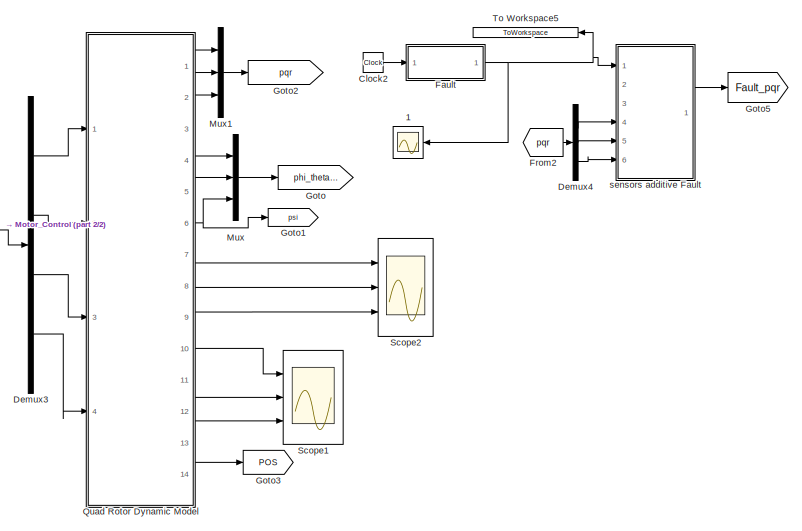
[diagram: root canvas - part 1/2, top right region]
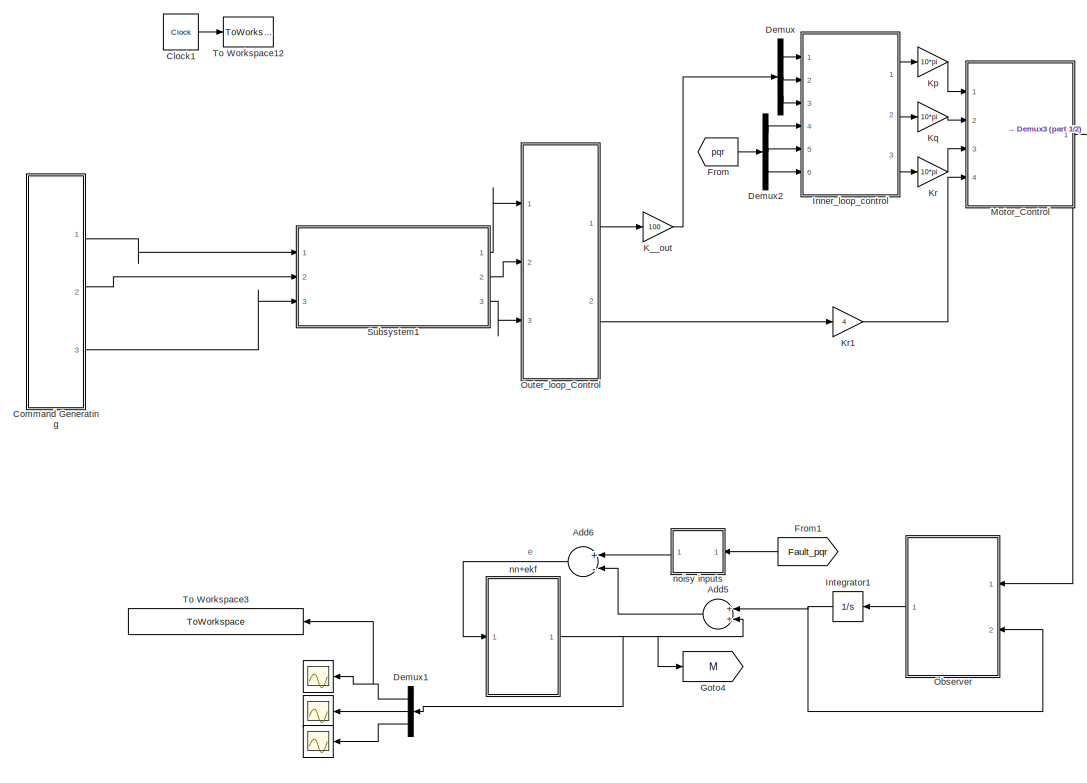
[diagram: root canvas - part 2/2, left side, full height]
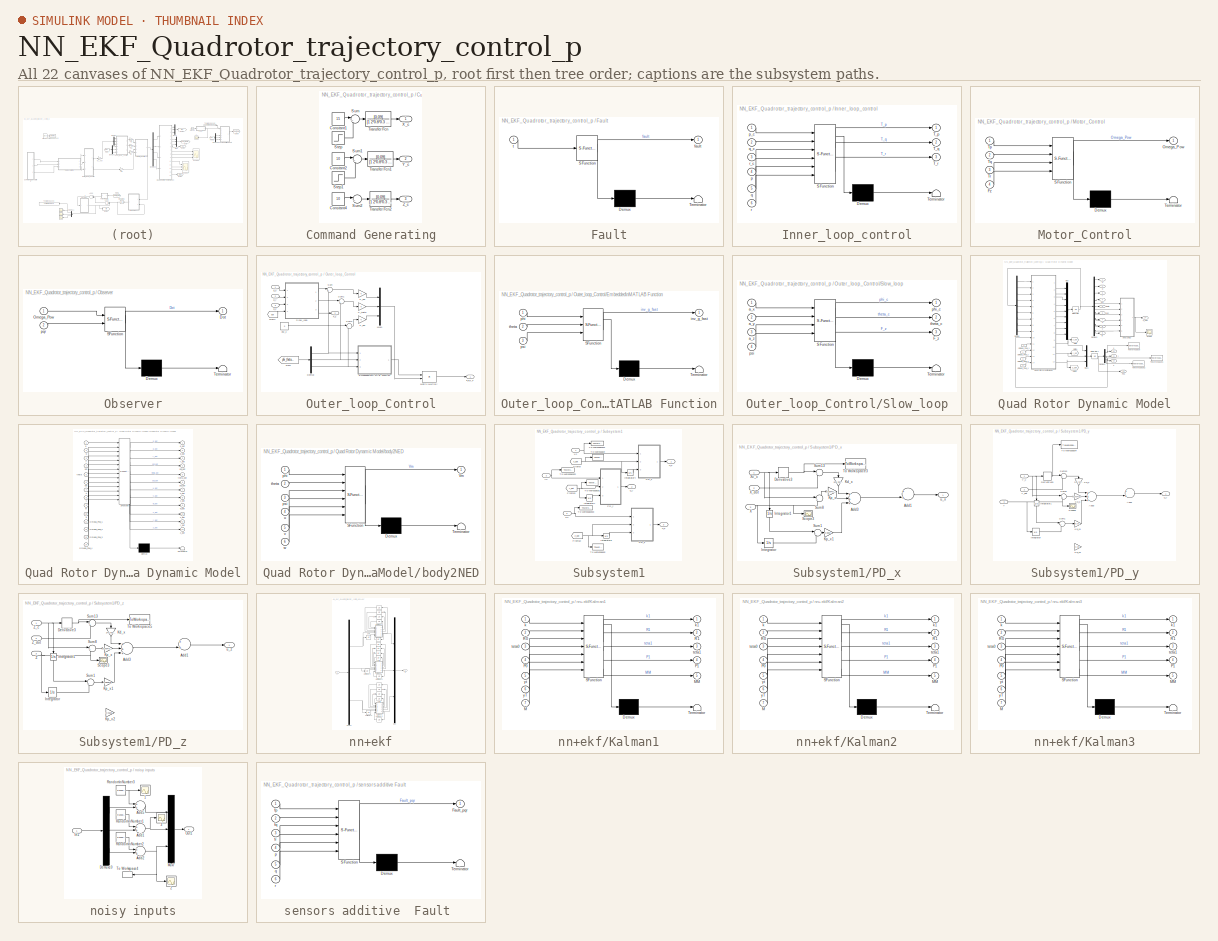
[diagram: thumbnail index - all 22 canvases of the model, root first then tree order]
MODEL NN_EKF_Quadrotor_trajectory_control_p
KIND model
BLOCK [Scope]      
  Ports = [1]
  SID = 1
  ScopeSpecificationString = C++SS(StrPVP('Location','[6, 49, 1282, 759]'),StrPVP('Open','off'),MxPVP('AxesTitles',24,'struct(''axes1'',''%<SignalLabel>'')'),StrPVP('TimeRange','20'),StrPVP('YMin','0.005'),StrPVP('YMax','0.11'),StrPVP('SaveName','ScopeData6'),StrPVP('DataFormat','StructureWithTime'),StrPVP('LimitDataPoints','off'),StrPVP('BlockParamSampleTime','0'),StrPVP('Decimation','1'),StrPVP('BlockParamSampleInput','off'...<+2ch>
BLOCK [Scope]       
  Ports = [1]
  SID = 2
  ScopeSpecificationString = C++SS(StrPVP('Location','[6, 49, 1282, 759]'),StrPVP('Open','off'),MxPVP('AxesTitles',24,'struct(''axes1'',''%<SignalLabel>'')'),StrPVP('YMin','-1.2'),StrPVP('YMax','-0.725'),StrPVP('SaveName','ScopeData7'),StrPVP('DataFormat','StructureWithTime'),StrPVP('LimitDataPoints','off'),StrPVP('BlockParamSampleTime','0'),StrPVP('Decimation','1'),StrPVP('BlockParamSampleInput','off'))
BLOCK [Scope]           
  Ports = [1]
  SID = 3
  ScopeSpecificationString = C++SS(StrPVP('Location','[5, 48, 1285, 759]'),StrPVP('Open','off'),MxPVP('AxesTitles',24,'struct(''axes1'',''%<SignalLabel>'')'),StrPVP('YMin','2.77556e-017'),StrPVP('YMax','1'),StrPVP('SaveName','ScopeData8'),StrPVP('DataFormat','StructureWithTime'),StrPVP('BlockParamSampleTime','0'),StrPVP('LimitDataPoints','on'),StrPVP('Decimation','1'),StrPVP('BlockParamSampleInput','off'))
BLOCK [Scope]      1
  Ports = [1]
  SID = 4
  ScopeSpecificationString = C++SS(StrPVP('Location','[6, 49, 1282, 759]'),StrPVP('Open','off'),MxPVP('AxesTitles',24,'struct(''axes1'',''%<SignalLabel>'')'),StrPVP('TimeRange','20'),StrPVP('YMin','0.0015'),StrPVP('YMax','0.011'),StrPVP('SaveName','ScopeData9'),StrPVP('DataFormat','StructureWithTime'),StrPVP('LimitDataPoints','off'),StrPVP('BlockParamSampleTime','0'),StrPVP('Decimation','1'),StrPVP('BlockParamSampleInput','of...<+4ch>
BLOCK [Sum] Add5
  InputSameDT = off
  OutDataTypeStr = Inherit: Inherit via internal rule
  Ports = [2, 1]
  SID = 5
  SaturateOnIntegerOverflow = off
BLOCK [Sum] Add6
  InputSameDT = off
  Inputs = +-
  OutDataTypeStr = Inherit: Same as accumulator
  Ports = [2, 1]
  SID = 6
  SaturateOnIntegerOverflow = off
BLOCK [Clock] Clock1
  SID = 7
BLOCK [Clock] Clock2
  SID = 231
BLOCK [SubSystem] Command Generating
  Ports = [0, 3]
  RequestExecContextInheritance = off
  SID = 8
  Variant = off
BLOCK [Constant] Command Generating/Constant1
  SID = 9
  Value = 15
BLOCK [Constant] Command Generating/Constant2
  SID = 10
  Value = 10
BLOCK [Constant] Command Generating/Constant4
  SID = 11
  Value = 10
BLOCK [Step] Command Generating/Step
  After = 15
  SID = 12
  SampleTime = 0
  Time = 30
BLOCK [Step] Command Generating/Step1
  After = 10
  SID = 13
  SampleTime = 0
  Time = 15
BLOCK [Sum] Command Generating/Sum
  IconShape = round
  InputSameDT = off
  Inputs = |+-
  OutDataTypeStr = Inherit: Inherit via internal rule
  Ports = [2, 1]
  SID = 14
  SaturateOnIntegerOverflow = off
BLOCK [Sum] Command Generating/Sum1
  IconShape = round
  InputSameDT = off
  Inputs = |+-
  OutDataTypeStr = Inherit: Inherit via internal rule
  Ports = [2, 1]
  SID = 15
  SaturateOnIntegerOverflow = off
BLOCK [Sum] Command Generating/Sum2
  IconShape = round
  InputSameDT = off
  Inputs = |+-
  OutDataTypeStr = Inherit: Inherit via internal rule
  Ports = [2, 1]
  SID = 16
  SaturateOnIntegerOverflow = off
BLOCK [TransferFcn] Command Generating/Transfer Fcn
  Denominator = [1 2*0.8*0.3 0.09]
  Numerator = [0.09]
  SID = 17
BLOCK [TransferFcn] Command Generating/Transfer Fcn1
  Denominator = [1 2*0.8*0.3 0.09]
  Numerator = [0.09]
  SID = 18
BLOCK [TransferFcn] Command Generating/Transfer Fcn2
  Denominator = [1 2*0.8*0.3 0.09]
  Numerator = [0.09]
  SID = 19
BLOCK [Outport] Command Generating/X_c
  IconDisplay = Port number
  SID = 20
BLOCK [Outport] Command Generating/Y_c
  IconDisplay = Port number
  Port = 2
  SID = 21
BLOCK [Outport] Command Generating/Z_c
  IconDisplay = Port number
  Port = 3
  SID = 22
BLOCK [Demux] Demux
  DisplayOption = bar
  Outputs = 3
  Ports = [1, 3]
  SID = 23
BLOCK [Demux] Demux1
  DisplayOption = bar
  Outputs = 3
  Ports = [1, 3]
  SID = 24
BLOCK [Demux] Demux2
  DisplayOption = bar
  Outputs = 3
  Ports = [1, 3]
  SID = 25
BLOCK [Demux] Demux3
  DisplayOption = bar
  Ports = [1, 4]
  SID = 26
BLOCK [Demux] Demux4
  DisplayOption = bar
  Outputs = 3
  Ports = [1, 3]
  SID = 27
BLOCK [SubSystem] Fault
  ErrorFcn = Stateflow.Translate.translate
  PermitHierarchicalResolution = ExplicitOnly
  Ports = [1, 1]
  RequestExecContextInheritance = off
  SFBlockType = MATLAB Function
  SID = 232
  TreatAsAtomicUnit = on
  Variant = off
BLOCK [Demux] Fault/ Demux 
  Outputs = 1
  Ports = [1, 1]
  SID = 232::11
BLOCK [S-Function] Fault/ SFunction 
  EnableBusSupport = on
  FunctionName = sf_sfun
  PortCounts = [1 2]
  Ports = [1, 2]
  SFunctionDeploymentMode = off
  SID = 232::10
  Tag = Stateflow S-Function NN_EKF_Quadrotor_trajectory_control_p 6
BLOCK [Terminator] Fault/ Terminator 
  SID = 232::12
BLOCK [Outport] Fault/fault
  IconDisplay = Port number
  SID = 232::5
BLOCK [Inport] Fault/t
  IconDisplay = Port number
  SID = 232::1
BLOCK [From] From
  GotoTag = pqr
  SID = 33
  TagVisibility = global
BLOCK [From] From1
  GotoTag = Fault_pqr
  SID = 34
BLOCK [From] From2
  GotoTag = pqr
  SID = 35
  TagVisibility = global
BLOCK [Goto] Goto
  GotoTag = phi_theta_psi
  SID = 36
  TagVisibility = global
BLOCK [Goto] Goto1
  GotoTag = psi
  SID = 37
  TagVisibility = global
BLOCK [Goto] Goto2
  GotoTag = pqr
  SID = 38
  TagVisibility = global
BLOCK [Goto] Goto3
  GotoTag = POS
  SID = 39
  TagVisibility = global
BLOCK [Goto] Goto4
  GotoTag = M
  SID = 40
BLOCK [Goto] Goto5
  GotoTag = Fault_pqr
  SID = 41
BLOCK [SubSystem] Inner_loop_control
  ErrorFcn = Stateflow.Translate.translate
  PermitHierarchicalResolution = ExplicitOnly
  Ports = [6, 3]
  RequestExecContextInheritance = off
  SFBlockType = MATLAB Function
  SID = 42
  TreatAsAtomicUnit = on
  Variant = off
BLOCK [Demux] Inner_loop_control/ Demux 
  Outputs = 1
  Ports = [1, 1]
  SID = 42::18
BLOCK [S-Function] Inner_loop_control/ SFunction 
  EnableBusSupport = on
  FunctionName = sf_sfun
  PortCounts = [6 4]
  Ports = [6, 4]
  SFunctionDeploymentMode = off
  SID = 42::17
  Tag = Stateflow S-Function NN_EKF_Quadrotor_trajectory_control_p 4
BLOCK [Terminator] Inner_loop_control/ Terminator 
  SID = 42::19
BLOCK [Outport] Inner_loop_control/T_p
  IconDisplay = Port number
  SID = 42::10
BLOCK [Outport] Inner_loop_control/T_q
  IconDisplay = Port number
  Port = 2
  SID = 42::11
BLOCK [Outport] Inner_loop_control/T_r
  IconDisplay = Port number
  Port = 3
  SID = 42::12
BLOCK [Inport] Inner_loop_control/p
  IconDisplay = Port number
  Port = 4
  SID = 42::4
BLOCK [Inport] Inner_loop_control/p_c
  IconDisplay = Port number
  SID = 42::1
BLOCK [Inport] Inner_loop_control/q
  IconDisplay = Port number
  Port = 5
  SID = 42::5
BLOCK [Inport] Inner_loop_control/q_c
  IconDisplay = Port number
  Port = 2
  SID = 42::2
BLOCK [Inport] Inner_loop_control/r
  IconDisplay = Port number
  Port = 6
  SID = 42::6
BLOCK [Inport] Inner_loop_control/r_c
  IconDisplay = Port number
  Port = 3
  SID = 42::3
BLOCK [Integrator] Integrator1
  InitialCondition = [0.0001;0.0001;0.0001]
  Ports = [1, 1]
  SID = 43
BLOCK [Gain] K__out
  Gain = 100
  OutDataTypeStr = Inherit: Inherit via internal rule
  ParamDataTypeStr = Inherit: Inherit via internal rule
  SID = 44
  SaturateOnIntegerOverflow = off
BLOCK [Gain] Kp
  Gain = 10*pi
  OutDataTypeStr = Inherit: Inherit via internal rule
  ParamDataTypeStr = Inherit: Inherit via internal rule
  SID = 45
  SaturateOnIntegerOverflow = off
BLOCK [Gain] Kq
  Gain = 10*pi
  OutDataTypeStr = Inherit: Inherit via internal rule
  ParamDataTypeStr = Inherit: Inherit via internal rule
  SID = 46
  SaturateOnIntegerOverflow = off
BLOCK [Gain] Kr
  Gain = 10*pi
  OutDataTypeStr = Inherit: Inherit via internal rule
  ParamDataTypeStr = Inherit: Inherit via internal rule
  SID = 47
  SaturateOnIntegerOverflow = off
BLOCK [Gain] Kr1
  Gain = 4
  OutDataTypeStr = Inherit: Inherit via internal rule
  ParamDataTypeStr = Inherit: Inherit via internal rule
  SID = 48
  SaturateOnIntegerOverflow = off
BLOCK [SubSystem] Motor_Control
  ErrorFcn = Stateflow.Translate.translate
  PermitHierarchicalResolution = ExplicitOnly
  Ports = [4, 1]
  RequestExecContextInheritance = off
  SFBlockType = MATLAB Function
  SID = 49
  TreatAsAtomicUnit = on
  Variant = off
BLOCK [Demux] Motor_Control/ Demux 
  Outputs = 1
  Ports = [1, 1]
  SID = 49::14
BLOCK [S-Function] Motor_Control/ SFunction 
  EnableBusSupport = on
  FunctionName = sf_sfun
  PortCounts = [4 2]
  Ports = [4, 2]
  SFunctionDeploymentMode = off
  SID = 49::13
  Tag = Stateflow S-Function NN_EKF_Quadrotor_trajectory_control_p 5
BLOCK [Terminator] Motor_Control/ Terminator 
  SID = 49::15
BLOCK [Inport] Motor_Control/Fz
  IconDisplay = Port number
  Port = 4
  SID = 49::4
BLOCK [Outport] Motor_Control/Omega_Pow
  IconDisplay = Port number
  SID = 49::8
BLOCK [Inport] Motor_Control/Tp
  IconDisplay = Port number
  SID = 49::1
BLOCK [Inport] Motor_Control/Tq
  IconDisplay = Port number
  Port = 2
  SID = 49::2
BLOCK [Inport] Motor_Control/Tr
  IconDisplay = Port number
  Port = 3
  SID = 49::3
BLOCK [Mux] Mux
  DisplayOption = bar
  Inputs = 3
  Ports = [3, 1]
  SID = 50
BLOCK [Mux] Mux1
  DisplayOption = bar
  Inputs = 3
  Ports = [3, 1]
  SID = 51
BLOCK [SubSystem] Observer
  ErrorFcn = Stateflow.Translate.translate
  PermitHierarchicalResolution = ExplicitOnly
  Ports = [2, 1]
  RequestExecContextInheritance = off
  SFBlockType = MATLAB Function
  SID = 52
  TreatAsAtomicUnit = on
  Variant = off
BLOCK [Demux] Observer/ Demux 
  Outputs = 1
  Ports = [1, 1]
  SID = 52::12
BLOCK [S-Function] Observer/ SFunction 
  EnableBusSupport = on
  FunctionName = sf_sfun
  PortCounts = [2 2]
  Ports = [2, 2]
  SFunctionDeploymentMode = off
  SID = 52::11
  Tag = Stateflow S-Function NN_EKF_Quadrotor_trajectory_control_p 7
BLOCK [Terminator] Observer/ Terminator 
  SID = 52::13
BLOCK [Outport] Observer/Dot
  IconDisplay = Port number
  SID = 52::6
BLOCK [Inport] Observer/Omega_Pow
  IconDisplay = Port number
  SID = 52::1
BLOCK [Inport] Observer/pqr
  IconDisplay = Port number
  Port = 2
  SID = 52::2
BLOCK [SubSystem] Outer_loop_Control
  Ports = [3, 2]
  RequestExecContextInheritance = off
  SID = 53
  Variant = off
BLOCK [Demux] Outer_loop_Control/Demux
  DisplayOption = bar
  Outputs = 3
  Ports = [1, 3]
  SID = 57
BLOCK [SubSystem] Outer_loop_Control/Embedded\nMATLAB Function
  ErrorFcn = Stateflow.Translate.translate
  PermitHierarchicalResolution = ExplicitOnly
  Ports = [3, 1]
  RequestExecContextInheritance = off
  SFBlockType = MATLAB Function
  SID = 58
  TreatAsAtomicUnit = on
  Variant = off
BLOCK [Demux] Outer_loop_Control/Embedded\nMATLAB Function/ Demux 
  Outputs = 1
  Ports = [1, 1]
  SID = 58::13
BLOCK [S-Function] Outer_loop_Control/Embedded\nMATLAB Function/ SFunction 
  EnableBusSupport = on
  FunctionName = sf_sfun
  PortCounts = [3 2]
  Ports = [3, 2]
  SFunctionDeploymentMode = off
  SID = 58::12
  Tag = Stateflow S-Function NN_EKF_Quadrotor_trajectory_control_p 1
BLOCK [Terminator] Outer_loop_Control/Embedded\nMATLAB Function/ Terminator 
  SID = 58::14
BLOCK [Outport] Outer_loop_Control/Embedded\nMATLAB Function/inv_g_fast
  IconDisplay = Port number
  SID = 58::7
BLOCK [Inport] Outer_loop_Control/Embedded\nMATLAB Function/phi
  IconDisplay = Port number
  SID = 58::1
BLOCK [Inport] Outer_loop_Control/Embedded\nMATLAB Function/psi
  IconDisplay = Port number
  Port = 3
  SID = 58::3
BLOCK [Inport] Outer_loop_Control/Embedded\nMATLAB Function/theta
  IconDisplay = Port number
  Port = 2
  SID = 58::2
BLOCK [Outport] Outer_loop_Control/F_z
  IconDisplay = Port number
  Port = 2
  SID = 72
BLOCK [From] Outer_loop_Control/From
  GotoTag = phi_theta_psi
  SID = 59
  TagVisibility = global
BLOCK [From] Outer_loop_Control/From1
  GotoTag = psi
  SID = 60
  TagVisibility = global
BLOCK [Gain] Outer_loop_Control/K_phi
  OutDataTypeStr = Inherit: Inherit via internal rule
  ParamDataTypeStr = Inherit: Inherit via internal rule
  SID = 61
  SaturateOnIntegerOverflow = off
BLOCK [Gain] Outer_loop_Control/K_psi
  OutDataTypeStr = Inherit: Inherit via internal rule
  ParamDataTypeStr = Inherit: Inherit via internal rule
  SID = 62
  SaturateOnIntegerOverflow = off
BLOCK [Gain] Outer_loop_Control/K_theta
  OutDataTypeStr = Inherit: Inherit via internal rule
  ParamDataTypeStr = Inherit: Inherit via internal rule
  SID = 63
  SaturateOnIntegerOverflow = off
BLOCK [Product] Outer_loop_Control/Matrix Multiply
  InputSameDT = off
  Multiplication = Matrix(*)
  OutDataTypeStr = Inherit: Inherit via internal rule
  Ports = [2, 1]
  RndMeth = Floor
  SID = 64
  SaturateOnIntegerOverflow = off
BLOCK [Mux] Outer_loop_Control/Mux1
  DisplayOption = bar
  Inputs = 3
  Ports = [3, 1]
  SID = 65
BLOCK [SubSystem] Outer_loop_Control/Slow_loop
  ErrorFcn = Stateflow.Translate.translate
  PermitHierarchicalResolution = ExplicitOnly
  Ports = [4, 3]
  RequestExecContextInheritance = off
  SFBlockType = MATLAB Function
  SID = 66
  TreatAsAtomicUnit = on
  Variant = off
BLOCK [Demux] Outer_loop_Control/Slow_loop/ Demux 
  Outputs = 1
  Ports = [1, 1]
  SID = 66::16
BLOCK [S-Function] Outer_loop_Control/Slow_loop/ SFunction 
  EnableBusSupport = on
  FunctionName = sf_sfun
  PortCounts = [4 4]
  Ports = [4, 4]
  SFunctionDeploymentMode = off
  SID = 66::15
  Tag = Stateflow S-Function NN_EKF_Quadrotor_trajectory_control_p 3
BLOCK [Terminator] Outer_loop_Control/Slow_loop/ Terminator 
  SID = 66::17
BLOCK [Outport] Outer_loop_Control/Slow_loop/F_z
  IconDisplay = Port number
  Port = 3
  SID = 66::10
BLOCK [Inport] Outer_loop_Control/Slow_loop/a_x
  IconDisplay = Port number
  SID = 66::1
BLOCK [Inport] Outer_loop_Control/Slow_loop/a_y
  IconDisplay = Port number
  Port = 2
  SID = 66::2
BLOCK [Inport] Outer_loop_Control/Slow_loop/a_z
  IconDisplay = Port number
  Port = 3
  SID = 66::3
BLOCK [Outport] Outer_loop_Control/Slow_loop/phi_c
  IconDisplay = Port number
  SID = 66::8
BLOCK [Inport] Outer_loop_Control/Slow_loop/psi
  IconDisplay = Port number
  Port = 4
  SID = 66::4
BLOCK [Outport] Outer_loop_Control/Slow_loop/theta_c
  IconDisplay = Port number
  Port = 2
  SID = 66::9
BLOCK [Sum] Outer_loop_Control/Sum
  IconShape = round
  InputSameDT = off
  Inputs = |+-
  OutDataTypeStr = Inherit: Inherit via internal rule
  Ports = [2, 1]
  SID = 67
  SaturateOnIntegerOverflow = off
BLOCK [Sum] Outer_loop_Control/Sum1
  IconShape = round
  InputSameDT = off
  Inputs = |+-
  OutDataTypeStr = Inherit: Inherit via internal rule
  Ports = [2, 1]
  SID = 68
  SaturateOnIntegerOverflow = off
BLOCK [Sum] Outer_loop_Control/Sum2
  IconShape = round
  InputSameDT = off
  Inputs = |+-
  OutDataTypeStr = Inherit: Inherit via internal rule
  Ports = [2, 1]
  SID = 69
  SaturateOnIntegerOverflow = off
BLOCK [Inport] Outer_loop_Control/a_x
  IconDisplay = Port number
  SID = 54
BLOCK [Inport] Outer_loop_Control/a_y
  IconDisplay = Port number
  Port = 2
  SID = 55
BLOCK [Inport] Outer_loop_Control/a_z
  IconDisplay = Port number
  Port = 3
  SID = 56
BLOCK [Outport] Outer_loop_Control/p_q_r_c
  IconDisplay = Port number
  SID = 71
BLOCK [Constant] Outer_loop_Control/psi_c
  SID = 70
  Value = 0
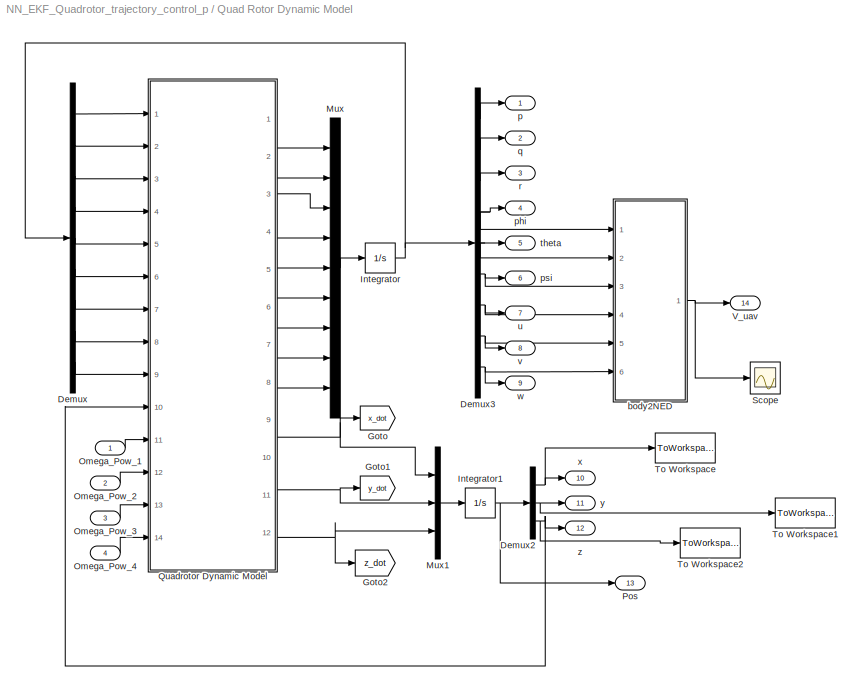
BLOCK [SubSystem] Quad Rotor Dynamic Model
  Ports = [4, 14]
  RequestExecContextInheritance = off
  SID = 73
  Variant = off
BLOCK [Demux] Quad Rotor Dynamic Model/Demux
  DisplayOption = bar
  Outputs = 9
  Ports = [1, 9]
  SID = 78
BLOCK [Demux] Quad Rotor Dynamic Model/Demux2
  DisplayOption = bar
  Outputs = 3
  Ports = [1, 3]
  SID = 79
BLOCK [Demux] Quad Rotor Dynamic Model/Demux3
  DisplayOption = bar
  Outputs = 9
  Ports = [1, 9]
  SID = 80
BLOCK [Goto] Quad Rotor Dynamic Model/Goto
  GotoTag = x_dot
  SID = 81
  TagVisibility = global
BLOCK [Goto] Quad Rotor Dynamic Model/Goto1
  GotoTag = y_dot
  SID = 82
  TagVisibility = global
BLOCK [Goto] Quad Rotor Dynamic Model/Goto2
  GotoTag = z_dot
  SID = 83
  TagVisibility = global
BLOCK [Integrator] Quad Rotor Dynamic Model/Integrator
  InitialCondition = [0.0001;0.0001;0.0001;0.00001;0.0001;0.0001;0.0001;0.0001;0.0001]
  Ports = [1, 1]
  SID = 84
BLOCK [Integrator] Quad Rotor Dynamic Model/Integrator1
  Ports = [1, 1]
  SID = 85
BLOCK [Mux] Quad Rotor Dynamic Model/Mux
  DisplayOption = bar
  Inputs = 9
  Ports = [9, 1]
  SID = 86
BLOCK [Mux] Quad Rotor Dynamic Model/Mux1
  DisplayOption = bar
  Inputs = 3
  Ports = [3, 1]
  SID = 87
BLOCK [Inport] Quad Rotor Dynamic Model/Omega_Pow_1
  IconDisplay = Port number
  SID = 74
BLOCK [Inport] Quad Rotor Dynamic Model/Omega_Pow_2
  IconDisplay = Port number
  Port = 2
  SID = 75
BLOCK [Inport] Quad Rotor Dynamic Model/Omega_Pow_3
  IconDisplay = Port number
  Port = 3
  SID = 76
BLOCK [Inport] Quad Rotor Dynamic Model/Omega_Pow_4
  IconDisplay = Port number
  Port = 4
  SID = 77
BLOCK [Outport] Quad Rotor Dynamic Model/Pos
  IconDisplay = Port number
  Port = 13
  SID = 106
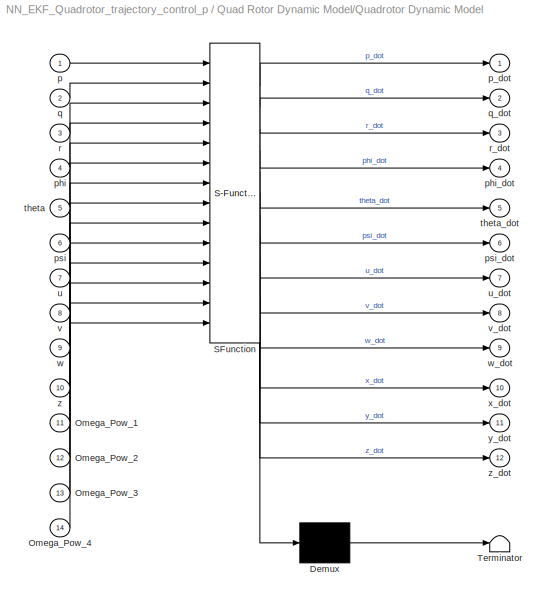
BLOCK [SubSystem] Quad Rotor Dynamic Model/Quadrotor Dynamic Model
  ErrorFcn = Stateflow.Translate.translate
  PermitHierarchicalResolution = ExplicitOnly
  Ports = [14, 12]
  RequestExecContextInheritance = off
  SFBlockType = MATLAB Function
  SID = 88
  TreatAsAtomicUnit = on
  Variant = off
BLOCK [Demux] Quad Rotor Dynamic Model/Quadrotor Dynamic Model/ Demux 
  Outputs = 1
  Ports = [1, 1]
  SID = 88::35
BLOCK [S-Function] Quad Rotor Dynamic Model/Quadrotor Dynamic Model/ SFunction 
  EnableBusSupport = on
  FunctionName = sf_sfun
  PortCounts = [14 13]
  Ports = [14, 13]
  SFunctionDeploymentMode = off
  SID = 88::34
  Tag = Stateflow S-Function NN_EKF_Quadrotor_trajectory_control_p 2
BLOCK [Terminator] Quad Rotor Dynamic Model/Quadrotor Dynamic Model/ Terminator 
  SID = 88::36
BLOCK [Inport] Quad Rotor Dynamic Model/Quadrotor Dynamic Model/Omega_Pow_1
  IconDisplay = Port number
  Port = 11
  SID = 88::11
BLOCK [Inport] Quad Rotor Dynamic Model/Quadrotor Dynamic Model/Omega_Pow_2
  IconDisplay = Port number
  Port = 12
  SID = 88::12
BLOCK [Inport] Quad Rotor Dynamic Model/Quadrotor Dynamic Model/Omega_Pow_3
  IconDisplay = Port number
  Port = 13
  SID = 88::13
BLOCK [Inport] Quad Rotor Dynamic Model/Quadrotor Dynamic Model/Omega_Pow_4
  IconDisplay = Port number
  Port = 14
  SID = 88::14
BLOCK [Inport] Quad Rotor Dynamic Model/Quadrotor Dynamic Model/p
  IconDisplay = Port number
  SID = 88::1
BLOCK [Outport] Quad Rotor Dynamic Model/Quadrotor Dynamic Model/p_dot
  IconDisplay = Port number
  SID = 88::18
BLOCK [Inport] Quad Rotor Dynamic Model/Quadrotor Dynamic Model/phi
  IconDisplay = Port number
  Port = 4
  SID = 88::4
BLOCK [Outport] Quad Rotor Dynamic Model/Quadrotor Dynamic Model/phi_dot
  IconDisplay = Port number
  Port = 4
  SID = 88::21
BLOCK [Inport] Quad Rotor Dynamic Model/Quadrotor Dynamic Model/psi
  IconDisplay = Port number
  Port = 6
  SID = 88::6
BLOCK [Outport] Quad Rotor Dynamic Model/Quadrotor Dynamic Model/psi_dot
  IconDisplay = Port number
  Port = 6
  SID = 88::23
BLOCK [Inport] Quad Rotor Dynamic Model/Quadrotor Dynamic Model/q
  IconDisplay = Port number
  Port = 2
  SID = 88::2
BLOCK [Outport] Quad Rotor Dynamic Model/Quadrotor Dynamic Model/q_dot
  IconDisplay = Port number
  Port = 2
  SID = 88::19
BLOCK [Inport] Quad Rotor Dynamic Model/Quadrotor Dynamic Model/r
  IconDisplay = Port number
  Port = 3
  SID = 88::3
BLOCK [Outport] Quad Rotor Dynamic Model/Quadrotor Dynamic Model/r_dot
  IconDisplay = Port number
  Port = 3
  SID = 88::20
BLOCK [Inport] Quad Rotor Dynamic Model/Quadrotor Dynamic Model/theta
  IconDisplay = Port number
  Port = 5
  SID = 88::5
BLOCK [Outport] Quad Rotor Dynamic Model/Quadrotor Dynamic Model/theta_dot
  IconDisplay = Port number
  Port = 5
  SID = 88::22
BLOCK [Inport] Quad Rotor Dynamic Model/Quadrotor Dynamic Model/u
  IconDisplay = Port number
  Port = 7
  SID = 88::7
BLOCK [Outport] Quad Rotor Dynamic Model/Quadrotor Dynamic Model/u_dot
  IconDisplay = Port number
  Port = 7
  SID = 88::24
BLOCK [Inport] Quad Rotor Dynamic Model/Quadrotor Dynamic Model/v
  IconDisplay = Port number
  Port = 8
  SID = 88::8
BLOCK [Outport] Quad Rotor Dynamic Model/Quadrotor Dynamic Model/v_dot
  IconDisplay = Port number
  Port = 8
  SID = 88::25
BLOCK [Inport] Quad Rotor Dynamic Model/Quadrotor Dynamic Model/w
  IconDisplay = Port number
  Port = 9
  SID = 88::9
BLOCK [Outport] Quad Rotor Dynamic Model/Quadrotor Dynamic Model/w_dot
  IconDisplay = Port number
  Port = 9
  SID = 88::26
BLOCK [Outport] Quad Rotor Dynamic Model/Quadrotor Dynamic Model/x_dot
  IconDisplay = Port number
  Port = 10
  SID = 88::27
BLOCK [Outport] Quad Rotor Dynamic Model/Quadrotor Dynamic Model/y_dot
  IconDisplay = Port number
  Port = 11
  SID = 88::28
BLOCK [Inport] Quad Rotor Dynamic Model/Quadrotor Dynamic Model/z
  IconDisplay = Port number
  Port = 10
  SID = 88::10
BLOCK [Outport] Quad Rotor Dynamic Model/Quadrotor Dynamic Model/z_dot
  IconDisplay = Port number
  Port = 12
  SID = 88::29
BLOCK [Scope] Quad Rotor Dynamic Model/Scope
  Ports = [1]
  SID = 89
  ScopeSpecificationString = C++SS(StrPVP('Location','[188, 390, 512, 629]'),StrPVP('Open','off'),MxPVP('AxesTitles',24,'struct(''axes1'',''%<SignalLabel>'')'),StrPVP('SaveName','ScopeData5'),StrPVP('DataFormat','StructureWithTime'),StrPVP('BlockParamSampleTime','0'),StrPVP('LimitDataPoints','on'),StrPVP('Decimation','1'),StrPVP('BlockParamSampleInput','off'))
BLOCK [ToWorkspace] Quad Rotor Dynamic Model/To Workspace
  MaxDataPoints = inf
  Ports = [1]
  SID = 90
  SampleTime = -1
  VariableName = X
BLOCK [ToWorkspace] Quad Rotor Dynamic Model/To Workspace1
  MaxDataPoints = inf
  Ports = [1]
  SID = 91
  SampleTime = -1
  VariableName = Y
BLOCK [ToWorkspace] Quad Rotor Dynamic Model/To Workspace2
  MaxDataPoints = inf
  Ports = [1]
  SID = 92
  SampleTime = -1
  VariableName = Z
BLOCK [Outport] Quad Rotor Dynamic Model/V_uav
  IconDisplay = Port number
  Port = 14
  SID = 107
BLOCK [SubSystem] Quad Rotor Dynamic Model/body2NED
  ErrorFcn = Stateflow.Translate.translate
  PermitHierarchicalResolution = ExplicitOnly
  Ports = [6, 1]
  RequestExecContextInheritance = off
  SFBlockType = MATLAB Function
  SID = 93
  TreatAsAtomicUnit = on
  Variant = off
BLOCK [Demux] Quad Rotor Dynamic Model/body2NED/ Demux 
  Outputs = 1
  Ports = [1, 1]
  SID = 93::16
BLOCK [S-Function] Quad Rotor Dynamic Model/body2NED/ SFunction 
  EnableBusSupport = on
  FunctionName = sf_sfun
  PortCounts = [6 2]
  Ports = [6, 2]
  SFunctionDeploymentMode = off
  SID = 93::15
  Tag = Stateflow S-Function NN_EKF_Quadrotor_trajectory_control_p 11
BLOCK [Terminator] Quad Rotor Dynamic Model/body2NED/ Terminator 
  SID = 93::17
BLOCK [Outport] Quad Rotor Dynamic Model/body2NED/Vm
  IconDisplay = Port number
  SID = 93::10
BLOCK [Inport] Quad Rotor Dynamic Model/body2NED/phi
  IconDisplay = Port number
  SID = 93::1
BLOCK [Inport] Quad Rotor Dynamic Model/body2NED/psi
  IconDisplay = Port number
  Port = 3
  SID = 93::3
BLOCK [Inport] Quad Rotor Dynamic Model/body2NED/theta
  IconDisplay = Port number
  Port = 2
  SID = 93::2
BLOCK [Inport] Quad Rotor Dynamic Model/body2NED/u
  IconDisplay = Port number
  Port = 4
  SID = 93::4
BLOCK [Inport] Quad Rotor Dynamic Model/body2NED/v
  IconDisplay = Port number
  Port = 5
  SID = 93::5
BLOCK [Inport] Quad Rotor Dynamic Model/body2NED/w
  IconDisplay = Port number
  Port = 6
  SID = 93::6
BLOCK [Outport] Quad Rotor Dynamic Model/p
  IconDisplay = Port number
  SID = 94
BLOCK [Outport] Quad Rotor Dynamic Model/phi
  IconDisplay = Port number
  Port = 4
  SID = 97
BLOCK [Outport] Quad Rotor Dynamic Model/psi
  IconDisplay = Port number
  Port = 6
  SID = 99
BLOCK [Outport] Quad Rotor Dynamic Model/q
  IconDisplay = Port number
  Port = 2
  SID = 95
BLOCK [Outport] Quad Rotor Dynamic Model/r
  IconDisplay = Port number
  Port = 3
  SID = 96
BLOCK [Outport] Quad Rotor Dynamic Model/theta
  IconDisplay = Port number
  Port = 5
  SID = 98
BLOCK [Outport] Quad Rotor Dynamic Model/u
  IconDisplay = Port number
  Port = 7
  SID = 100
BLOCK [Outport] Quad Rotor Dynamic Model/v
  IconDisplay = Port number
  Port = 8
  SID = 101
BLOCK [Outport] Quad Rotor Dynamic Model/w
  IconDisplay = Port number
  Port = 9
  SID = 102
BLOCK [Outport] Quad Rotor Dynamic Model/x
  IconDisplay = Port number
  Port = 10
  SID = 103
BLOCK [Outport] Quad Rotor Dynamic Model/y
  IconDisplay = Port number
  Port = 11
  SID = 104
BLOCK [Outport] Quad Rotor Dynamic Model/z
  IconDisplay = Port number
  Port = 12
  SID = 105
BLOCK [Scope] Scope1
  NumInputPorts = 3
  Ports = [3]
  SID = 108
  ScopeSpecificationString = C++SS(StrPVP('Location','[6, 48, 1368, 727]'),StrPVP('Open','off'),MxPVP('AxesTitles',24,'struct(''axes1'',''%<SignalLabel>'',''axes2'',''%<SignalLabel>'',''axes3'',''%<SignalLabel>'')'),StrPVP('YMin','-2~-1.5~7.6'),StrPVP('YMax','7~4.5~7.95'),StrPVP('SaveName','ScopeData3'),StrPVP('DataFormat','StructureWithTime'),StrPVP('LimitDataPoints','off'),StrPVP('BlockParamSampleTime','0'),StrPVP('Decimati...<+47ch>
BLOCK [Scope] Scope2
  NumInputPorts = 3
  Ports = [3]
  SID = 109
  ScopeSpecificationString = C++SS(StrPVP('Location','[5, 48, 1367, 727]'),StrPVP('Open','off'),MxPVP('AxesTitles',24,'struct(''axes1'',''%<SignalLabel>'',''axes2'',''%<SignalLabel>'',''axes3'',''%<SignalLabel>'')'),StrPVP('YMin','-1.75e-005~6e-005~0.0042'),StrPVP('YMax','1.5e-005~0.0002~0.0054'),StrPVP('SaveName','ScopeData4'),StrPVP('DataFormat','StructureWithTime'),StrPVP('BlockParamSampleTime','0'),StrPVP('LimitDataPoints...<+71ch>
BLOCK [SubSystem] Subsystem1
  Ports = [3, 3]
  RequestExecContextInheritance = off
  SID = 110
  Variant = off
BLOCK [From] Subsystem1/From10
  GotoTag = z_dot
  SID = 114
  TagVisibility = global
BLOCK [From] Subsystem1/From13
  GotoTag = y_dot
  SID = 115
  TagVisibility = global
BLOCK [From] Subsystem1/From9
  GotoTag = x_dot
  SID = 116
  TagVisibility = global
BLOCK [Integrator] Subsystem1/Integrator4
  Ports = [1, 1]
  SID = 117
BLOCK [Integrator] Subsystem1/Integrator6
  Ports = [1, 1]
  SID = 118
BLOCK [Integrator] Subsystem1/Integrator7
  Ports = [1, 1]
  SID = 119
BLOCK [SubSystem] Subsystem1/PD_x
  Ports = [3, 1]
  RequestExecContextInheritance = off
  SID = 120
  Variant = off
BLOCK [Sum] Subsystem1/PD_x/Add1
  InputSameDT = off
  OutDataTypeStr = Inherit: Inherit via internal rule
  Ports = [2, 1]
  SID = 124
  SaturateOnIntegerOverflow = off
BLOCK [Sum] Subsystem1/PD_x/Add3
  InputSameDT = off
  Inputs = +++
  OutDataTypeStr = Inherit: Inherit via internal rule
  Ports = [3, 1]
  SID = 125
  SaturateOnIntegerOverflow = off
BLOCK [Derivative] Subsystem1/PD_x/Derivative3
  SID = 126
BLOCK [Integrator] Subsystem1/PD_x/Integrator
  Ports = [1, 1]
  SID = 127
BLOCK [Integrator] Subsystem1/PD_x/Integrator1
  Ports = [1, 1]
  SID = 128
BLOCK [Gain] Subsystem1/PD_x/Kd_x
  Gain = 2*0.707*0.5
  OutDataTypeStr = Inherit: Inherit via internal rule
  ParamDataTypeStr = Inherit: Inherit via internal rule
  SID = 129
  SaturateOnIntegerOverflow = off
BLOCK [Gain] Subsystem1/PD_x/Kp_x
  Gain = 0.434*0.85*2
  OutDataTypeStr = Inherit: Inherit via internal rule
  ParamDataTypeStr = Inherit: Inherit via internal rule
  SID = 130
  SaturateOnIntegerOverflow = off
BLOCK [Gain] Subsystem1/PD_x/Kp_x1
  Gain = 0.0001
  OutDataTypeStr = Inherit: Inherit via internal rule
  ParamDataTypeStr = Inherit: Inherit via internal rule
  SID = 131
  SaturateOnIntegerOverflow = off
BLOCK [Scope] Subsystem1/PD_x/Scope3
  Ports = [1]
  SID = 132
  ScopeSpecificationString = C++SS(StrPVP('Location','[5, 48, 1371, 727]'),StrPVP('Open','off'),MxPVP('AxesTitles',24,'struct(''axes1'',''%<SignalLabel>'')'),StrPVP('DataFormat','StructureWithTime'),StrPVP('BlockParamSampleTime','0'),StrPVP('LimitDataPoints','on'),StrPVP('Decimation','1'),StrPVP('BlockParamSampleInput','off'))
BLOCK [Sum] Subsystem1/PD_x/Sum1
  IconShape = round
  InputSameDT = off
  Inputs = |+-
  OutDataTypeStr = Inherit: Inherit via internal rule
  Ports = [2, 1]
  SID = 133
  SaturateOnIntegerOverflow = off
BLOCK [Sum] Subsystem1/PD_x/Sum13
  IconShape = round
  InputSameDT = off
  Inputs = |+-
  OutDataTypeStr = Inherit: Inherit via internal rule
  Ports = [2, 1]
  SID = 134
  SaturateOnIntegerOverflow = off
BLOCK [Sum] Subsystem1/PD_x/Sum8
  IconShape = round
  InputSameDT = off
  Inputs = |+-
  OutDataTypeStr = Inherit: Inherit via internal rule
  Ports = [2, 1]
  SID = 135
  SaturateOnIntegerOverflow = off
BLOCK [ToWorkspace] Subsystem1/PD_x/To Workspace3
  MaxDataPoints = inf
  Ports = [1]
  SID = 136
  SampleTime = -1
  VariableName = u_c
BLOCK [Inport] Subsystem1/PD_x/X
  IconDisplay = Port number
  Port = 3
  SID = 123
BLOCK [Inport] Subsystem1/PD_x/X_dot
  IconDisplay = Port number
  Port = 2
  SID = 122
BLOCK [Inport] Subsystem1/PD_x/Xc_c
  IconDisplay = Port number
  SID = 121
BLOCK [Outport] Subsystem1/PD_x/u_x
  IconDisplay = Port number
  SID = 137
BLOCK [SubSystem] Subsystem1/PD_y
  Ports = [3, 1]
  RequestExecContextInheritance = off
  SID = 138
  Variant = off
BLOCK [Sum] Subsystem1/PD_y/Add1
  InputSameDT = off
  OutDataTypeStr = Inherit: Inherit via internal rule
  Ports = [2, 1]
  SID = 142
  SaturateOnIntegerOverflow = off
BLOCK [Sum] Subsystem1/PD_y/Add3
  InputSameDT = off
  Inputs = +++
  OutDataTypeStr = Inherit: Inherit via internal rule
  Ports = [3, 1]
  SID = 143
  SaturateOnIntegerOverflow = off
BLOCK [Derivative] Subsystem1/PD_y/Derivative3
  SID = 144
BLOCK [Integrator] Subsystem1/PD_y/Integrator
  Ports = [1, 1]
  SID = 145
BLOCK [Integrator] Subsystem1/PD_y/Integrator1
  Ports = [1, 1]
  SID = 146
BLOCK [Gain] Subsystem1/PD_y/Kd_x
  Gain = 2*0.707*0.5
  OutDataTypeStr = Inherit: Inherit via internal rule
  ParamDataTypeStr = Inherit: Inherit via internal rule
  SID = 147
  SaturateOnIntegerOverflow = off
BLOCK [Gain] Subsystem1/PD_y/Kp_x
  Gain = 0.434*0.85*2
  OutDataTypeStr = Inherit: Inherit via internal rule
  ParamDataTypeStr = Inherit: Inherit via internal rule
  SID = 148
  SaturateOnIntegerOverflow = off
BLOCK [Gain] Subsystem1/PD_y/Kp_x1
  Gain = 0.01
  OutDataTypeStr = Inherit: Inherit via internal rule
  ParamDataTypeStr = Inherit: Inherit via internal rule
  SID = 149
  SaturateOnIntegerOverflow = off
BLOCK [Gain] Subsystem1/PD_y/Kp_x2
  Gain = 0.03
  OutDataTypeStr = Inherit: Inherit via internal rule
  ParamDataTypeStr = Inherit: Inherit via internal rule
  SID = 150
  SaturateOnIntegerOverflow = off
BLOCK [Scope] Subsystem1/PD_y/Scope3
  Ports = [1]
  SID = 151
  ScopeSpecificationString = C++SS(StrPVP('Location','[5, 48, 1371, 727]'),StrPVP('Open','off'),MxPVP('AxesTitles',24,'struct(''axes1'',''%<SignalLabel>'')'),StrPVP('SaveName','ScopeData1'),StrPVP('DataFormat','StructureWithTime'),StrPVP('BlockParamSampleTime','0'),StrPVP('LimitDataPoints','on'),StrPVP('Decimation','1'),StrPVP('BlockParamSampleInput','off'))
BLOCK [Sum] Subsystem1/PD_y/Sum1
  IconShape = round
  InputSameDT = off
  Inputs = |+-
  OutDataTypeStr = Inherit: Inherit via internal rule
  Ports = [2, 1]
  SID = 152
  SaturateOnIntegerOverflow = off
BLOCK [Sum] Subsystem1/PD_y/Sum13
  IconShape = round
  InputSameDT = off
  Inputs = |+-
  OutDataTypeStr = Inherit: Inherit via internal rule
  Ports = [2, 1]
  SID = 153
  SaturateOnIntegerOverflow = off
BLOCK [Sum] Subsystem1/PD_y/Sum8
  IconShape = round
  InputSameDT = off
  Inputs = |+-
  OutDataTypeStr = Inherit: Inherit via internal rule
  Ports = [2, 1]
  SID = 154
  SaturateOnIntegerOverflow = off
BLOCK [ToWorkspace] Subsystem1/PD_y/To Workspace4
  MaxDataPoints = inf
  Ports = [1]
  SID = 155
  SampleTime = -1
  VariableName = v_c
BLOCK [Inport] Subsystem1/PD_y/Y
  IconDisplay = Port number
  Port = 3
  SID = 141
BLOCK [Inport] Subsystem1/PD_y/Y_c
  IconDisplay = Port number
  SID = 139
BLOCK [Inport] Subsystem1/PD_y/Y_dot
  IconDisplay = Port number
  Port = 2
  SID = 140
BLOCK [Outport] Subsystem1/PD_y/u_y
  IconDisplay = Port number
  SID = 156
BLOCK [SubSystem] Subsystem1/PD_z
  Ports = [3, 1]
  RequestExecContextInheritance = off
  SID = 157
  Variant = off
BLOCK [Sum] Subsystem1/PD_z/Add1
  InputSameDT = off
  OutDataTypeStr = Inherit: Inherit via internal rule
  Ports = [2, 1]
  SID = 161
  SaturateOnIntegerOverflow = off
BLOCK [Sum] Subsystem1/PD_z/Add3
  InputSameDT = off
  Inputs = +++
  OutDataTypeStr = Inherit: Inherit via internal rule
  Ports = [3, 1]
  SID = 162
  SaturateOnIntegerOverflow = off
BLOCK [Derivative] Subsystem1/PD_z/Derivative3
  SID = 163
BLOCK [Integrator] Subsystem1/PD_z/Integrator
  Ports = [1, 1]
  SID = 164
BLOCK [Integrator] Subsystem1/PD_z/Integrator1
  Ports = [1, 1]
  SID = 165
BLOCK [Gain] Subsystem1/PD_z/Kd_x
  Gain = 2*0.707*0.434*4
  OutDataTypeStr = Inherit: Inherit via internal rule
  ParamDataTypeStr = Inherit: Inherit via internal rule
  SID = 166
  SaturateOnIntegerOverflow = off
BLOCK [Gain] Subsystem1/PD_z/Kp_x
  Gain = 0.434*0.85
  OutDataTypeStr = Inherit: Inherit via internal rule
  ParamDataTypeStr = Inherit: Inherit via internal rule
  SID = 167
  SaturateOnIntegerOverflow = off
BLOCK [Gain] Subsystem1/PD_z/Kp_x1
  Gain = 0.0506*8
  OutDataTypeStr = Inherit: Inherit via internal rule
  ParamDataTypeStr = Inherit: Inherit via internal rule
  SID = 168
  SaturateOnIntegerOverflow = off
BLOCK [Gain] Subsystem1/PD_z/Kp_x2
  Gain = 0.0106
  OutDataTypeStr = Inherit: Inherit via internal rule
  ParamDataTypeStr = Inherit: Inherit via internal rule
  SID = 169
  SaturateOnIntegerOverflow = off
BLOCK [Scope] Subsystem1/PD_z/Scope3
  Ports = [1]
  SID = 170
  ScopeSpecificationString = C++SS(StrPVP('Location','[5, 48, 1371, 727]'),StrPVP('Open','off'),MxPVP('AxesTitles',24,'struct(''axes1'',''%<SignalLabel>'')'),StrPVP('SaveName','ScopeData2'),StrPVP('DataFormat','StructureWithTime'),StrPVP('BlockParamSampleTime','0'),StrPVP('LimitDataPoints','on'),StrPVP('Decimation','1'),StrPVP('BlockParamSampleInput','off'))
BLOCK [Sum] Subsystem1/PD_z/Sum1
  IconShape = round
  InputSameDT = off
  Inputs = |+-
  OutDataTypeStr = Inherit: Inherit via internal rule
  Ports = [2, 1]
  SID = 171
  SaturateOnIntegerOverflow = off
BLOCK [Sum] Subsystem1/PD_z/Sum13
  IconShape = round
  InputSameDT = off
  Inputs = |+-
  OutDataTypeStr = Inherit: Inherit via internal rule
  Ports = [2, 1]
  SID = 172
  SaturateOnIntegerOverflow = off
BLOCK [Sum] Subsystem1/PD_z/Sum8
  IconShape = round
  InputSameDT = off
  Inputs = |+-
  OutDataTypeStr = Inherit: Inherit via internal rule
  Ports = [2, 1]
  SID = 173
  SaturateOnIntegerOverflow = off
BLOCK [ToWorkspace] Subsystem1/PD_z/To Workspace5
  MaxDataPoints = inf
  Ports = [1]
  SID = 174
  SampleTime = -1
  VariableName = w_c
BLOCK [Inport] Subsystem1/PD_z/Z
  IconDisplay = Port number
  Port = 3
  SID = 160
BLOCK [Inport] Subsystem1/PD_z/Z_c
  IconDisplay = Port number
  SID = 158
BLOCK [Inport] Subsystem1/PD_z/Z_dot
  IconDisplay = Port number
  Port = 2
  SID = 159
BLOCK [Outport] Subsystem1/PD_z/u_z
  IconDisplay = Port number
  SID = 175
BLOCK [ToWorkspace] Subsystem1/To Workspace
  MaxDataPoints = inf
  Ports = [1]
  SID = 176
  SampleTime = -1
  VariableName = u_out
BLOCK [ToWorkspace] Subsystem1/To Workspace1
  MaxDataPoints = inf
  Ports = [1]
  SID = 177
  SampleTime = -1
  VariableName = v_out
BLOCK [ToWorkspace] Subsystem1/To Workspace2
  MaxDataPoints = inf
  Ports = [1]
  SID = 178
  SampleTime = -1
  VariableName = w_out
BLOCK [ToWorkspace] Subsystem1/To Workspace21
  MaxDataPoints = inf
  Ports = [1]
  SID = 179
  SampleTime = -1
  VariableName = X_c
BLOCK [ToWorkspace] Subsystem1/To Workspace22
  MaxDataPoints = inf
  Ports = [1]
  SID = 180
  SampleTime = -1
  VariableName = Y_c
BLOCK [ToWorkspace] Subsystem1/To Workspace23
  MaxDataPoints = inf
  Ports = [1]
  SID = 181
  SampleTime = -1
  VariableName = Z_c
BLOCK [Inport] Subsystem1/Xc
  IconDisplay = Port number
  SID = 111
BLOCK [Inport] Subsystem1/Yc
  IconDisplay = Port number
  Port = 2
  SID = 112
BLOCK [Inport] Subsystem1/Zc
  IconDisplay = Port number
  Port = 3
  SID = 113
BLOCK [Outport] Subsystem1/u_x
  IconDisplay = Port number
  SID = 182
BLOCK [Outport] Subsystem1/u_y
  IconDisplay = Port number
  Port = 2
  SID = 183
BLOCK [Outport] Subsystem1/u_z
  IconDisplay = Port number
  Port = 3
  SID = 184
BLOCK [ToWorkspace] To Workspace12
  MaxDataPoints = inf
  Ports = [1]
  SID = 185
  SampleTime = -1
  VariableName = T
BLOCK [ToWorkspace] To Workspace3
  MaxDataPoints = inf
  Ports = [1]
  SID = 186
  SampleTime = -1
  VariableName = Detected_Fault_sigmoid_p_NN_EKF
BLOCK [ToWorkspace] To Workspace5
  MaxDataPoints = inf
  Ports = [1]
  SID = 187
  SampleTime = -1
  VariableName = Fault_sigmoid_p
BLOCK [SubSystem] nn+ekf
  Ports = [1, 1]
  RequestExecContextInheritance = off
  SID = 188
  Variant = off
BLOCK [UnitDelay] nn+ekf/ 
  InitialCondition = 1
  SID = 190
  SampleTime = -1
BLOCK [UnitDelay] nn+ekf/  
  InitialCondition = 5*eye(3)
  SID = 191
  SampleTime = -1
BLOCK [UnitDelay] nn+ekf/   
  InitialCondition = 5*eye(3)
  SID = 192
  SampleTime = -1
BLOCK [UnitDelay] nn+ekf/      
  InitialCondition = .01
  SID = 193
  SampleTime = -1
BLOCK [UnitDelay] nn+ekf/                
  InitialCondition = 10*eye(3)
  SID = 194
  SampleTime = -1
BLOCK [Demux] nn+ekf/Demux
  DisplayOption = bar
  Outputs = 3
  Ports = [1, 3]
  SID = 195
BLOCK [SubSystem] nn+ekf/Kalman1
  ErrorFcn = Stateflow.Translate.translate
  PermitHierarchicalResolution = ExplicitOnly
  Ports = [7, 5]
  RequestExecContextInheritance = off
  SFBlockType = MATLAB Function
  SID = 196
  TreatAsAtomicUnit = on
  Variant = off
BLOCK [Demux] nn+ekf/Kalman1/ Demux 
  Outputs = 1
  Ports = [1, 1]
  SID = 196::21
BLOCK [S-Function] nn+ekf/Kalman1/ SFunction 
  EnableBusSupport = on
  FunctionName = sf_sfun
  PortCounts = [7 6]
  Ports = [7, 6]
  SFunctionDeploymentMode = off
  SID = 196::20
  Tag = Stateflow S-Function NN_EKF_Quadrotor_trajectory_control_p 8
BLOCK [Terminator] nn+ekf/Kalman1/ Terminator 
  SID = 196::22
BLOCK [Inport] nn+ekf/Kalman1/M
  IconDisplay = Port number
  Port = 7
  SID = 196::7
BLOCK [Outport] nn+ekf/Kalman1/MM
  IconDisplay = Port number
  Port = 5
  SID = 196::15
BLOCK [Inport] nn+ekf/Kalman1/P0
  IconDisplay = Port number
  Port = 4
  SID = 196::4
BLOCK [Outport] nn+ekf/Kalman1/P1
  IconDisplay = Port number
  Port = 4
  SID = 196::14
BLOCK [Inport] nn+ekf/Kalman1/R0
  IconDisplay = Port number
  Port = 2
  SID = 196::2
BLOCK [Outport] nn+ekf/Kalman1/R1
  IconDisplay = Port number
  Port = 2
  SID = 196::12
BLOCK [Inport] nn+ekf/Kalman1/k
  IconDisplay = Port number
  SID = 196::1
BLOCK [Outport] nn+ekf/Kalman1/k1
  IconDisplay = Port number
  SID = 196::11
BLOCK [Inport] nn+ekf/Kalman1/teta0
  IconDisplay = Port number
  Port = 3
  SID = 196::3
BLOCK [Outport] nn+ekf/Kalman1/teta1
  IconDisplay = Port number
  Port = 3
  SID = 196::13
BLOCK [Inport] nn+ekf/Kalman1/yT
  IconDisplay = Port number
  Port = 6
  SID = 196::6
BLOCK [Inport] nn+ekf/Kalman1/yt
  IconDisplay = Port number
  Port = 5
  SID = 196::5
BLOCK [SubSystem] nn+ekf/Kalman2
  ErrorFcn = Stateflow.Translate.translate
  PermitHierarchicalResolution = ExplicitOnly
  Ports = [7, 5]
  RequestExecContextInheritance = off
  SFBlockType = MATLAB Function
  SID = 197
  TreatAsAtomicUnit = on
  Variant = off
BLOCK [Demux] nn+ekf/Kalman2/ Demux 
  Outputs = 1
  Ports = [1, 1]
  SID = 197::21
BLOCK [S-Function] nn+ekf/Kalman2/ SFunction 
  EnableBusSupport = on
  FunctionName = sf_sfun
  PortCounts = [7 6]
  Ports = [7, 6]
  SFunctionDeploymentMode = off
  SID = 197::20
  Tag = Stateflow S-Function NN_EKF_Quadrotor_trajectory_control_p 9
BLOCK [Terminator] nn+ekf/Kalman2/ Terminator 
  SID = 197::22
BLOCK [Inport] nn+ekf/Kalman2/M
  IconDisplay = Port number
  Port = 7
  SID = 197::7
BLOCK [Outport] nn+ekf/Kalman2/MM
  IconDisplay = Port number
  Port = 5
  SID = 197::15
BLOCK [Inport] nn+ekf/Kalman2/P0
  IconDisplay = Port number
  Port = 4
  SID = 197::4
BLOCK [Outport] nn+ekf/Kalman2/P1
  IconDisplay = Port number
  Port = 4
  SID = 197::14
BLOCK [Inport] nn+ekf/Kalman2/R0
  IconDisplay = Port number
  Port = 2
  SID = 197::2
BLOCK [Outport] nn+ekf/Kalman2/R1
  IconDisplay = Port number
  Port = 2
  SID = 197::12
BLOCK [Inport] nn+ekf/Kalman2/k
  IconDisplay = Port number
  SID = 197::1
BLOCK [Outport] nn+ekf/Kalman2/k1
  IconDisplay = Port number
  SID = 197::11
BLOCK [Inport] nn+ekf/Kalman2/teta0
  IconDisplay = Port number
  Port = 3
  SID = 197::3
BLOCK [Outport] nn+ekf/Kalman2/teta1
  IconDisplay = Port number
  Port = 3
  SID = 197::13
BLOCK [Inport] nn+ekf/Kalman2/yT
  IconDisplay = Port number
  Port = 6
  SID = 197::6
BLOCK [Inport] nn+ekf/Kalman2/yt
  IconDisplay = Port number
  Port = 5
  SID = 197::5
BLOCK [SubSystem] nn+ekf/Kalman3
  ErrorFcn = Stateflow.Translate.translate
  PermitHierarchicalResolution = ExplicitOnly
  Ports = [7, 5]
  RequestExecContextInheritance = off
  SFBlockType = MATLAB Function
  SID = 198
  TreatAsAtomicUnit = on
  Variant = off
BLOCK [Demux] nn+ekf/Kalman3/ Demux 
  Outputs = 1
  Ports = [1, 1]
  SID = 198::21
BLOCK [S-Function] nn+ekf/Kalman3/ SFunction 
  EnableBusSupport = on
  FunctionName = sf_sfun
  PortCounts = [7 6]
  Ports = [7, 6]
  SFunctionDeploymentMode = off
  SID = 198::20
  Tag = Stateflow S-Function NN_EKF_Quadrotor_trajectory_control_p 10
BLOCK [Terminator] nn+ekf/Kalman3/ Terminator 
  SID = 198::22
BLOCK [Inport] nn+ekf/Kalman3/M
  IconDisplay = Port number
  Port = 7
  SID = 198::7
BLOCK [Outport] nn+ekf/Kalman3/MM
  IconDisplay = Port number
  Port = 5
  SID = 198::15
BLOCK [Inport] nn+ekf/Kalman3/P0
  IconDisplay = Port number
  Port = 4
  SID = 198::4
BLOCK [Outport] nn+ekf/Kalman3/P1
  IconDisplay = Port number
  Port = 4
  SID = 198::14
BLOCK [Inport] nn+ekf/Kalman3/R0
  IconDisplay = Port number
  Port = 2
  SID = 198::2
BLOCK [Outport] nn+ekf/Kalman3/R1
  IconDisplay = Port number
  Port = 2
  SID = 198::12
BLOCK [Inport] nn+ekf/Kalman3/k
  IconDisplay = Port number
  SID = 198::1
BLOCK [Outport] nn+ekf/Kalman3/k1
  IconDisplay = Port number
  SID = 198::11
BLOCK [Inport] nn+ekf/Kalman3/teta0
  IconDisplay = Port number
  Port = 3
  SID = 198::3
BLOCK [Outport] nn+ekf/Kalman3/teta1
  IconDisplay = Port number
  Port = 3
  SID = 198::13
BLOCK [Inport] nn+ekf/Kalman3/yT
  IconDisplay = Port number
  Port = 6
  SID = 198::6
BLOCK [Inport] nn+ekf/Kalman3/yt
  IconDisplay = Port number
  Port = 5
  SID = 198::5
BLOCK [Outport] nn+ekf/M
  IconDisplay = Port number
  SID = 213
BLOCK [Mux] nn+ekf/Mux
  DisplayOption = bar
  Inputs = 3
  Ports = [3, 1]
  SID = 199
BLOCK [UnitDelay] nn+ekf/Unit 
  SID = 200
  SampleTime = -1
BLOCK [UnitDelay] nn+ekf/Unit 2
  InitialCondition = 1
  SID = 201
  SampleTime = -1
BLOCK [UnitDelay] nn+ekf/Unit 3
  InitialCondition = 1
  SID = 202
  SampleTime = -1
BLOCK [UnitDelay] nn+ekf/Unit 4
  InitialCondition = .00002
  SID = 203
  SampleTime = -1
BLOCK [UnitDelay] nn+ekf/Unit 5
  InitialCondition = .00002
  SID = 204
  SampleTime = -1
BLOCK [UnitDelay] nn+ekf/Unit 6
  InitialCondition = .00002
  SID = 205
  SampleTime = -1
BLOCK [UnitDelay] nn+ekf/Unit 7
  InitialCondition = [1;1;1]
  SID = 206
  SampleTime = -1
BLOCK [UnitDelay] nn+ekf/Unit 8
  InitialCondition = [1;.5;.5]
  SID = 207
  SampleTime = -1
BLOCK [UnitDelay] nn+ekf/Unit 9
  InitialCondition = [1;.5;.5]
  SID = 208
  SampleTime = -1
BLOCK [UnitDelay] nn+ekf/Unit Delay3
  SID = 209
  SampleTime = -1
BLOCK [UnitDelay] nn+ekf/Unit Delay4
  SID = 210
  SampleTime = -1
BLOCK [UnitDelay] nn+ekf/Unit Delay5
  InitialCondition = .01
  SID = 211
  SampleTime = -1
BLOCK [UnitDelay] nn+ekf/Unit Delay6
  InitialCondition = .01
  SID = 212
  SampleTime = -1
BLOCK [Inport] nn+ekf/yt
  IconDisplay = Port number
  SID = 189
BLOCK [SubSystem] noisy inputs
  Ports = [1, 1]
  RequestExecContextInheritance = off
  SID = 214
  Variant = off
BLOCK [Scope] noisy inputs/     1
  Ports = [1]
  SID = 216
  ScopeSpecificationString = C++SS(StrPVP('Location','[6, 48, 1286, 759]'),StrPVP('Open','off'),StrPVP('ZoomMode','yonly'),MxPVP('AxesTitles',24,'struct(''axes1'',''%<SignalLabel>'')'),StrPVP('YMin','-0.05'),StrPVP('YMax','0.055'),StrPVP('SaveName','ScopeData2'),StrPVP('DataFormat','StructureWithTime'),StrPVP('LimitDataPoints','off'),StrPVP('BlockParamSampleTime','0'),StrPVP('Decimation','1'),StrPVP('BlockParamSampleInput','o...<+5ch>
BLOCK [Scope] noisy inputs/     2
  Ports = [1]
  SID = 217
  ScopeSpecificationString = C++SS(StrPVP('Location','[6, 48, 1286, 759]'),StrPVP('Open','off'),StrPVP('ZoomMode','yonly'),MxPVP('AxesTitles',24,'struct(''axes1'',''%<SignalLabel>'')'),StrPVP('YMin','-0.05'),StrPVP('YMax','0.055'),StrPVP('SaveName','ScopeData1'),StrPVP('DataFormat','StructureWithTime'),StrPVP('LimitDataPoints','off'),StrPVP('BlockParamSampleTime','0'),StrPVP('Decimation','1'),StrPVP('BlockParamSampleInput','o...<+5ch>
BLOCK [Scope] noisy inputs/     3
  Ports = [1]
  SID = 218
  ScopeSpecificationString = C++SS(StrPVP('Location','[6, 48, 1286, 759]'),StrPVP('Open','off'),StrPVP('ZoomMode','yonly'),MxPVP('AxesTitles',24,'struct(''axes1'',''%<SignalLabel>'')'),StrPVP('YMin','-0.05'),StrPVP('YMax','0.055'),StrPVP('SaveName','ScopeData3'),StrPVP('DataFormat','StructureWithTime'),StrPVP('LimitDataPoints','off'),StrPVP('BlockParamSampleTime','0'),StrPVP('Decimation','1'),StrPVP('BlockParamSampleInput','o...<+5ch>
BLOCK [Sum] noisy inputs/Add1
  InputSameDT = off
  OutDataTypeStr = Inherit: Inherit via internal rule
  Ports = [2, 1]
  SID = 219
  SaturateOnIntegerOverflow = off
BLOCK [Sum] noisy inputs/Add2
  InputSameDT = off
  OutDataTypeStr = Inherit: Inherit via internal rule
  Ports = [2, 1]
  SID = 220
  SaturateOnIntegerOverflow = off
BLOCK [Sum] noisy inputs/Add5
  InputSameDT = off
  OutDataTypeStr = Inherit: Inherit via internal rule
  Ports = [2, 1]
  SID = 221
  SaturateOnIntegerOverflow = off
BLOCK [Demux] noisy inputs/Demux10
  DisplayOption = bar
  Outputs = 3
  Ports = [1, 3]
  SID = 222
BLOCK [Inport] noisy inputs/In1
  IconDisplay = Port number
  SID = 215
BLOCK [Mux] noisy inputs/Mux7
  DisplayOption = bar
  Inputs = 3
  Ports = [3, 1]
  SID = 223
BLOCK [Outport] noisy inputs/Out1
  IconDisplay = Port number
  SID = 228
BLOCK [RandomNumber] noisy inputs/Random\nNumber1
  SID = 224
  Seed = 18
  Variance = (1*pi/180)^2
BLOCK [RandomNumber] noisy inputs/Random\nNumber2
  SID = 225
  Seed = 40
  Variance = (1*pi/180)^2
BLOCK [RandomNumber] noisy inputs/Random\nNumber3
  SID = 226
  Seed = 68
  Variance = (1*pi/180)^2
BLOCK [ToWorkspace] noisy inputs/To Workspace4
  MaxDataPoints = inf
  Ports = [1]
  SID = 227
  SampleTime = -1
  VariableName = Noise
BLOCK [SubSystem] sensors additive  Fault 
  ErrorFcn = Stateflow.Translate.translate
  PermitHierarchicalResolution = ExplicitOnly
  Ports = [6, 1]
  RequestExecContextInheritance = off
  SFBlockType = MATLAB Function
  SID = 229
  TreatAsAtomicUnit = on
  Variant = off
BLOCK [Demux] sensors additive  Fault / Demux 
  Outputs = 1
  Ports = [1, 1]
  SID = 229::16
BLOCK [S-Function] sensors additive  Fault / SFunction 
  EnableBusSupport = on
  FunctionName = sf_sfun
  PortCounts = [6 2]
  Ports = [6, 2]
  SFunctionDeploymentMode = off
  SID = 229::15
  Tag = Stateflow S-Function NN_EKF_Quadrotor_trajectory_control_p 13
BLOCK [Terminator] sensors additive  Fault / Terminator 
  SID = 229::17
BLOCK [Outport] sensors additive  Fault /Fault_pqr
  IconDisplay = Port number
  SID = 229::10
BLOCK [Inport] sensors additive  Fault /fp
  IconDisplay = Port number
  SID = 229::1
BLOCK [Inport] sensors additive  Fault /fq
  IconDisplay = Port number
  Port = 2
  SID = 229::2
BLOCK [Inport] sensors additive  Fault /fr
  IconDisplay = Port number
  Port = 3
  SID = 229::3
BLOCK [Inport] sensors additive  Fault /p
  IconDisplay = Port number
  Port = 4
  SID = 229::4
BLOCK [Inport] sensors additive  Fault /q
  IconDisplay = Port number
  Port = 5
  SID = 229::5
BLOCK [Inport] sensors additive  Fault /r
  IconDisplay = Port number
  Port = 6
  SID = 229::6
ANNOTATION (root): e
LINE Add5:1 -> Add6:2
LINE Add6:1 -> nn+ekf:1
LINE Clock1:1 -> To Workspace12:1
LINE Clock2:1 -> Fault:1
LINE Command Generating/Constant1:1 -> Command Generating/Sum:1
LINE Command Generating/Constant2:1 -> Command Generating/Sum1:1
LINE Command Generating/Constant4:1 -> Command Generating/Sum2:1
LINE Command Generating/Step1:1 -> Command Generating/Sum1:2
LINE Command Generating/Step:1 -> Command Generating/Sum:2
LINE Command Generating/Sum1:1 -> Command Generating/Transfer Fcn1:1
LINE Command Generating/Sum2:1 -> Command Generating/Transfer Fcn2:1
LINE Command Generating/Sum:1 -> Command Generating/Transfer Fcn:1
LINE Command Generating/Transfer Fcn1:1 -> Command Generating/Y_c:1
LINE Command Generating/Transfer Fcn2:1 -> Command Generating/Z_c:1
LINE Command Generating/Transfer Fcn:1 -> Command Generating/X_c:1
LINE Command Generating:1 -> Subsystem1:1
LINE Command Generating:2 -> Subsystem1:2
LINE Command Generating:3 -> Subsystem1:3
NET Demux1:1 ->      :1, To Workspace3:1
LINE Demux1:2 ->       :1
LINE Demux1:3 ->           :1
LINE Demux2:1 -> Inner_loop_control:4
LINE Demux2:2 -> Inner_loop_control:5
LINE Demux2:3 -> Inner_loop_control:6
LINE Demux3:1 -> Quad Rotor Dynamic Model:1
LINE Demux3:2 -> Quad Rotor Dynamic Model:2
LINE Demux3:3 -> Quad Rotor Dynamic Model:3
LINE Demux3:4 -> Quad Rotor Dynamic Model:4
LINE Demux4:1 -> sensors additive  Fault :4
LINE Demux4:2 -> sensors additive  Fault :5
LINE Demux4:3 -> sensors additive  Fault :6
LINE Demux:1 -> Inner_loop_control:1
LINE Demux:2 -> Inner_loop_control:2
LINE Demux:3 -> Inner_loop_control:3
LINE Fault/ Demux :1 -> Fault/ Terminator :1
LINE Fault/ SFunction :1 -> Fault/ Demux :1
LINE Fault/ SFunction :2 -> Fault/fault:1
LINE Fault/t:1 -> Fault/ SFunction :1
NET Fault:1 ->      1:1, To Workspace5:1, sensors additive  Fault :1
LINE From1:1 -> noisy inputs:1
LINE From2:1 -> Demux4:1
LINE From:1 -> Demux2:1
LINE Inner_loop_control/ Demux :1 -> Inner_loop_control/ Terminator :1
LINE Inner_loop_control/ SFunction :1 -> Inner_loop_control/ Demux :1
LINE Inner_loop_control/ SFunction :2 -> Inner_loop_control/T_p:1
LINE Inner_loop_control/ SFunction :3 -> Inner_loop_control/T_q:1
LINE Inner_loop_control/ SFunction :4 -> Inner_loop_control/T_r:1
LINE Inner_loop_control/p:1 -> Inner_loop_control/ SFunction :4
LINE Inner_loop_control/p_c:1 -> Inner_loop_control/ SFunction :1
LINE Inner_loop_control/q:1 -> Inner_loop_control/ SFunction :5
LINE Inner_loop_control/q_c:1 -> Inner_loop_control/ SFunction :2
LINE Inner_loop_control/r:1 -> Inner_loop_control/ SFunction :6
LINE Inner_loop_control/r_c:1 -> Inner_loop_control/ SFunction :3
LINE Inner_loop_control:1 -> Kp:1
LINE Inner_loop_control:2 -> Kq:1
LINE Inner_loop_control:3 -> Kr:1
NET Integrator1:1 -> Add5:1, Observer:2
LINE K__out:1 -> Demux:1
LINE Kp:1 -> Motor_Control:1
LINE Kq:1 -> Motor_Control:2
LINE Kr1:1 -> Motor_Control:4
LINE Kr:1 -> Motor_Control:3
LINE Motor_Control/ Demux :1 -> Motor_Control/ Terminator :1
LINE Motor_Control/ SFunction :1 -> Motor_Control/ Demux :1
LINE Motor_Control/ SFunction :2 -> Motor_Control/Omega_Pow:1
LINE Motor_Control/Fz:1 -> Motor_Control/ SFunction :4
LINE Motor_Control/Tp:1 -> Motor_Control/ SFunction :1
LINE Motor_Control/Tq:1 -> Motor_Control/ SFunction :2
LINE Motor_Control/Tr:1 -> Motor_Control/ SFunction :3
NET Motor_Control:1 -> Demux3:1, Observer:1
LINE Mux1:1 -> Goto2:1
LINE Mux:1 -> Goto:1
LINE Observer/ Demux :1 -> Observer/ Terminator :1
LINE Observer/ SFunction :1 -> Observer/ Demux :1
LINE Observer/ SFunction :2 -> Observer/Dot:1
LINE Observer/Omega_Pow:1 -> Observer/ SFunction :1
LINE Observer/pqr:1 -> Observer/ SFunction :2
LINE Observer:1 -> Integrator1:1
NET Outer_loop_Control/Demux:1 -> Outer_loop_Control/Embedded\nMATLAB Function:1, Outer_loop_Control/Sum:2
NET Outer_loop_Control/Demux:2 -> Outer_loop_Control/Embedded\nMATLAB Function:2, Outer_loop_Control/Sum1:2
NET Outer_loop_Control/Demux:3 -> Outer_loop_Control/Embedded\nMATLAB Function:3, Outer_loop_Control/Sum2:2
LINE Outer_loop_Control/Embedded\nMATLAB Function/ Demux :1 -> Outer_loop_Control/Embedded\nMATLAB Function/ Terminator :1
LINE Outer_loop_Control/Embedded\nMATLAB Function/ SFunction :1 -> Outer_loop_Control/Embedded\nMATLAB Function/ Demux :1
LINE Outer_loop_Control/Embedded\nMATLAB Function/ SFunction :2 -> Outer_loop_Control/Embedded\nMATLAB Function/inv_g_fast:1
LINE Outer_loop_Control/Embedded\nMATLAB Function/phi:1 -> Outer_loop_Control/Embedded\nMATLAB Function/ SFunction :1
LINE Outer_loop_Control/Embedded\nMATLAB Function/psi:1 -> Outer_loop_Control/Embedded\nMATLAB Function/ SFunction :3
LINE Outer_loop_Control/Embedded\nMATLAB Function/theta:1 -> Outer_loop_Control/Embedded\nMATLAB Function/ SFunction :2
LINE Outer_loop_Control/Embedded\nMATLAB Function:1 -> Outer_loop_Control/Matrix Multiply:1
LINE Outer_loop_Control/From1:1 -> Outer_loop_Control/Slow_loop:4
LINE Outer_loop_Control/From:1 -> Outer_loop_Control/Demux:1
LINE Outer_loop_Control/K_phi:1 -> Outer_loop_Control/Mux1:1
LINE Outer_loop_Control/K_psi:1 -> Outer_loop_Control/Mux1:3
LINE Outer_loop_Control/K_theta:1 -> Outer_loop_Control/Mux1:2
LINE Outer_loop_Control/Matrix Multiply:1 -> Outer_loop_Control/p_q_r_c:1
LINE Outer_loop_Control/Mux1:1 -> Outer_loop_Control/Matrix Multiply:2
LINE Outer_loop_Control/Slow_loop/ Demux :1 -> Outer_loop_Control/Slow_loop/ Terminator :1
LINE Outer_loop_Control/Slow_loop/ SFunction :1 -> Outer_loop_Control/Slow_loop/ Demux :1
LINE Outer_loop_Control/Slow_loop/ SFunction :2 -> Outer_loop_Control/Slow_loop/phi_c:1
LINE Outer_loop_Control/Slow_loop/ SFunction :3 -> Outer_loop_Control/Slow_loop/theta_c:1
LINE Outer_loop_Control/Slow_loop/ SFunction :4 -> Outer_loop_Control/Slow_loop/F_z:1
LINE Outer_loop_Control/Slow_loop/a_x:1 -> Outer_loop_Control/Slow_loop/ SFunction :1
LINE Outer_loop_Control/Slow_loop/a_y:1 -> Outer_loop_Control/Slow_loop/ SFunction :2
LINE Outer_loop_Control/Slow_loop/a_z:1 -> Outer_loop_Control/Slow_loop/ SFunction :3
LINE Outer_loop_Control/Slow_loop/psi:1 -> Outer_loop_Control/Slow_loop/ SFunction :4
LINE Outer_loop_Control/Slow_loop:1 -> Outer_loop_Control/Sum:1
LINE Outer_loop_Control/Slow_loop:2 -> Outer_loop_Control/Sum1:1
LINE Outer_loop_Control/Slow_loop:3 -> Outer_loop_Control/F_z:1
LINE Outer_loop_Control/Sum1:1 -> Outer_loop_Control/K_theta:1
LINE Outer_loop_Control/Sum2:1 -> Outer_loop_Control/K_psi:1
LINE Outer_loop_Control/Sum:1 -> Outer_loop_Control/K_phi:1
LINE Outer_loop_Control/a_x:1 -> Outer_loop_Control/Slow_loop:1
LINE Outer_loop_Control/a_y:1 -> Outer_loop_Control/Slow_loop:2
LINE Outer_loop_Control/a_z:1 -> Outer_loop_Control/Slow_loop:3
LINE Outer_loop_Control/psi_c:1 -> Outer_loop_Control/Sum2:1
LINE Outer_loop_Control:1 -> K__out:1
LINE Outer_loop_Control:2 -> Kr1:1
NET Quad Rotor Dynamic Model/Demux2:1 -> Quad Rotor Dynamic Model/To Workspace:1, Quad Rotor Dynamic Model/x:1
NET Quad Rotor Dynamic Model/Demux2:2 -> Quad Rotor Dynamic Model/To Workspace1:1, Quad Rotor Dynamic Model/y:1
NET Quad Rotor Dynamic Model/Demux2:3 -> Quad Rotor Dynamic Model/Quadrotor Dynamic Model:10, Quad Rotor Dynamic Model/To Workspace2:1, Quad Rotor Dynamic Model/z:1
LINE Quad Rotor Dynamic Model/Demux3:1 -> Quad Rotor Dynamic Model/p:1
LINE Quad Rotor Dynamic Model/Demux3:2 -> Quad Rotor Dynamic Model/q:1
LINE Quad Rotor Dynamic Model/Demux3:3 -> Quad Rotor Dynamic Model/r:1
NET Quad Rotor Dynamic Model/Demux3:4 -> Quad Rotor Dynamic Model/body2NED:1, Quad Rotor Dynamic Model/phi:1
NET Quad Rotor Dynamic Model/Demux3:5 -> Quad Rotor Dynamic Model/body2NED:2, Quad Rotor Dynamic Model/theta:1
NET Quad Rotor Dynamic Model/Demux3:6 -> Quad Rotor Dynamic Model/body2NED:3, Quad Rotor Dynamic Model/psi:1
NET Quad Rotor Dynamic Model/Demux3:7 -> Quad Rotor Dynamic Model/body2NED:4, Quad Rotor Dynamic Model/u:1
NET Quad Rotor Dynamic Model/Demux3:8 -> Quad Rotor Dynamic Model/body2NED:5, Quad Rotor Dynamic Model/v:1
NET Quad Rotor Dynamic Model/Demux3:9 -> Quad Rotor Dynamic Model/body2NED:6, Quad Rotor Dynamic Model/w:1
LINE Quad Rotor Dynamic Model/Demux:1 -> Quad Rotor Dynamic Model/Quadrotor Dynamic Model:1
LINE Quad Rotor Dynamic Model/Demux:2 -> Quad Rotor Dynamic Model/Quadrotor Dynamic Model:2
LINE Quad Rotor Dynamic Model/Demux:3 -> Quad Rotor Dynamic Model/Quadrotor Dynamic Model:3
LINE Quad Rotor Dynamic Model/Demux:4 -> Quad Rotor Dynamic Model/Quadrotor Dynamic Model:4
LINE Quad Rotor Dynamic Model/Demux:5 -> Quad Rotor Dynamic Model/Quadrotor Dynamic Model:5
LINE Quad Rotor Dynamic Model/Demux:6 -> Quad Rotor Dynamic Model/Quadrotor Dynamic Model:6
LINE Quad Rotor Dynamic Model/Demux:7 -> Quad Rotor Dynamic Model/Quadrotor Dynamic Model:7
LINE Quad Rotor Dynamic Model/Demux:8 -> Quad Rotor Dynamic Model/Quadrotor Dynamic Model:8
LINE Quad Rotor Dynamic Model/Demux:9 -> Quad Rotor Dynamic Model/Quadrotor Dynamic Model:9
NET Quad Rotor Dynamic Model/Integrator1:1 -> Quad Rotor Dynamic Model/Demux2:1, Quad Rotor Dynamic Model/Pos:1
NET Quad Rotor Dynamic Model/Integrator:1 -> Quad Rotor Dynamic Model/Demux3:1, Quad Rotor Dynamic Model/Demux:1
LINE Quad Rotor Dynamic Model/Mux1:1 -> Quad Rotor Dynamic Model/Integrator1:1
LINE Quad Rotor Dynamic Model/Mux:1 -> Quad Rotor Dynamic Model/Integrator:1
LINE Quad Rotor Dynamic Model/Omega_Pow_1:1 -> Quad Rotor Dynamic Model/Quadrotor Dynamic Model:11
LINE Quad Rotor Dynamic Model/Omega_Pow_2:1 -> Quad Rotor Dynamic Model/Quadrotor Dynamic Model:12
LINE Quad Rotor Dynamic Model/Omega_Pow_3:1 -> Quad Rotor Dynamic Model/Quadrotor Dynamic Model:13
LINE Quad Rotor Dynamic Model/Omega_Pow_4:1 -> Quad Rotor Dynamic Model/Quadrotor Dynamic Model:14
LINE Quad Rotor Dynamic Model/Quadrotor Dynamic Model/ Demux :1 -> Quad Rotor Dynamic Model/Quadrotor Dynamic Model/ Terminator :1
LINE Quad Rotor Dynamic Model/Quadrotor Dynamic Model/ SFunction :1 -> Quad Rotor Dynamic Model/Quadrotor Dynamic Model/ Demux :1
LINE Quad Rotor Dynamic Model/Quadrotor Dynamic Model/ SFunction :10 -> Quad Rotor Dynamic Model/Quadrotor Dynamic Model/w_dot:1
LINE Quad Rotor Dynamic Model/Quadrotor Dynamic Model/ SFunction :11 -> Quad Rotor Dynamic Model/Quadrotor Dynamic Model/x_dot:1
LINE Quad Rotor Dynamic Model/Quadrotor Dynamic Model/ SFunction :12 -> Quad Rotor Dynamic Model/Quadrotor Dynamic Model/y_dot:1
LINE Quad Rotor Dynamic Model/Quadrotor Dynamic Model/ SFunction :13 -> Quad Rotor Dynamic Model/Quadrotor Dynamic Model/z_dot:1
LINE Quad Rotor Dynamic Model/Quadrotor Dynamic Model/ SFunction :2 -> Quad Rotor Dynamic Model/Quadrotor Dynamic Model/p_dot:1
LINE Quad Rotor Dynamic Model/Quadrotor Dynamic Model/ SFunction :3 -> Quad Rotor Dynamic Model/Quadrotor Dynamic Model/q_dot:1
LINE Quad Rotor Dynamic Model/Quadrotor Dynamic Model/ SFunction :4 -> Quad Rotor Dynamic Model/Quadrotor Dynamic Model/r_dot:1
LINE Quad Rotor Dynamic Model/Quadrotor Dynamic Model/ SFunction :5 -> Quad Rotor Dynamic Model/Quadrotor Dynamic Model/phi_dot:1
LINE Quad Rotor Dynamic Model/Quadrotor Dynamic Model/ SFunction :6 -> Quad Rotor Dynamic Model/Quadrotor Dynamic Model/theta_dot:1
LINE Quad Rotor Dynamic Model/Quadrotor Dynamic Model/ SFunction :7 -> Quad Rotor Dynamic Model/Quadrotor Dynamic Model/psi_dot:1
LINE Quad Rotor Dynamic Model/Quadrotor Dynamic Model/ SFunction :8 -> Quad Rotor Dynamic Model/Quadrotor Dynamic Model/u_dot:1
LINE Quad Rotor Dynamic Model/Quadrotor Dynamic Model/ SFunction :9 -> Quad Rotor Dynamic Model/Quadrotor Dynamic Model/v_dot:1
LINE Quad Rotor Dynamic Model/Quadrotor Dynamic Model/Omega_Pow_1:1 -> Quad Rotor Dynamic Model/Quadrotor Dynamic Model/ SFunction :11
LINE Quad Rotor Dynamic Model/Quadrotor Dynamic Model/Omega_Pow_2:1 -> Quad Rotor Dynamic Model/Quadrotor Dynamic Model/ SFunction :12
LINE Quad Rotor Dynamic Model/Quadrotor Dynamic Model/Omega_Pow_3:1 -> Quad Rotor Dynamic Model/Quadrotor Dynamic Model/ SFunction :13
LINE Quad Rotor Dynamic Model/Quadrotor Dynamic Model/Omega_Pow_4:1 -> Quad Rotor Dynamic Model/Quadrotor Dynamic Model/ SFunction :14
LINE Quad Rotor Dynamic Model/Quadrotor Dynamic Model/p:1 -> Quad Rotor Dynamic Model/Quadrotor Dynamic Model/ SFunction :1
LINE Quad Rotor Dynamic Model/Quadrotor Dynamic Model/phi:1 -> Quad Rotor Dynamic Model/Quadrotor Dynamic Model/ SFunction :4
LINE Quad Rotor Dynamic Model/Quadrotor Dynamic Model/psi:1 -> Quad Rotor Dynamic Model/Quadrotor Dynamic Model/ SFunction :6
LINE Quad Rotor Dynamic Model/Quadrotor Dynamic Model/q:1 -> Quad Rotor Dynamic Model/Quadrotor Dynamic Model/ SFunction :2
LINE Quad Rotor Dynamic Model/Quadrotor Dynamic Model/r:1 -> Quad Rotor Dynamic Model/Quadrotor Dynamic Model/ SFunction :3
LINE Quad Rotor Dynamic Model/Quadrotor Dynamic Model/theta:1 -> Quad Rotor Dynamic Model/Quadrotor Dynamic Model/ SFunction :5
LINE Quad Rotor Dynamic Model/Quadrotor Dynamic Model/u:1 -> Quad Rotor Dynamic Model/Quadrotor Dynamic Model/ SFunction :7
LINE Quad Rotor Dynamic Model/Quadrotor Dynamic Model/v:1 -> Quad Rotor Dynamic Model/Quadrotor Dynamic Model/ SFunction :8
LINE Quad Rotor Dynamic Model/Quadrotor Dynamic Model/w:1 -> Quad Rotor Dynamic Model/Quadrotor Dynamic Model/ SFunction :9
LINE Quad Rotor Dynamic Model/Quadrotor Dynamic Model/z:1 -> Quad Rotor Dynamic Model/Quadrotor Dynamic Model/ SFunction :10
LINE Quad Rotor Dynamic Model/Quadrotor Dynamic Model:1 -> Quad Rotor Dynamic Model/Mux:1
NET Quad Rotor Dynamic Model/Quadrotor Dynamic Model:10 -> Quad Rotor Dynamic Model/Goto:1, Quad Rotor Dynamic Model/Mux1:1
NET Quad Rotor Dynamic Model/Quadrotor Dynamic Model:11 -> Quad Rotor Dynamic Model/Goto1:1, Quad Rotor Dynamic Model/Mux1:2
NET Quad Rotor Dynamic Model/Quadrotor Dynamic Model:12 -> Quad Rotor Dynamic Model/Goto2:1, Quad Rotor Dynamic Model/Mux1:3
LINE Quad Rotor Dynamic Model/Quadrotor Dynamic Model:2 -> Quad Rotor Dynamic Model/Mux:2
LINE Quad Rotor Dynamic Model/Quadrotor Dynamic Model:3 -> Quad Rotor Dynamic Model/Mux:3
LINE Quad Rotor Dynamic Model/Quadrotor Dynamic Model:4 -> Quad Rotor Dynamic Model/Mux:4
LINE Quad Rotor Dynamic Model/Quadrotor Dynamic Model:5 -> Quad Rotor Dynamic Model/Mux:5
LINE Quad Rotor Dynamic Model/Quadrotor Dynamic Model:6 -> Quad Rotor Dynamic Model/Mux:6
LINE Quad Rotor Dynamic Model/Quadrotor Dynamic Model:7 -> Quad Rotor Dynamic Model/Mux:7
LINE Quad Rotor Dynamic Model/Quadrotor Dynamic Model:8 -> Quad Rotor Dynamic Model/Mux:8
LINE Quad Rotor Dynamic Model/Quadrotor Dynamic Model:9 -> Quad Rotor Dynamic Model/Mux:9
LINE Quad Rotor Dynamic Model/body2NED/ Demux :1 -> Quad Rotor Dynamic Model/body2NED/ Terminator :1
LINE Quad Rotor Dynamic Model/body2NED/ SFunction :1 -> Quad Rotor Dynamic Model/body2NED/ Demux :1
LINE Quad Rotor Dynamic Model/body2NED/ SFunction :2 -> Quad Rotor Dynamic Model/body2NED/Vm:1
LINE Quad Rotor Dynamic Model/body2NED/phi:1 -> Quad Rotor Dynamic Model/body2NED/ SFunction :1
LINE Quad Rotor Dynamic Model/body2NED/psi:1 -> Quad Rotor Dynamic Model/body2NED/ SFunction :3
LINE Quad Rotor Dynamic Model/body2NED/theta:1 -> Quad Rotor Dynamic Model/body2NED/ SFunction :2
LINE Quad Rotor Dynamic Model/body2NED/u:1 -> Quad Rotor Dynamic Model/body2NED/ SFunction :4
LINE Quad Rotor Dynamic Model/body2NED/v:1 -> Quad Rotor Dynamic Model/body2NED/ SFunction :5
LINE Quad Rotor Dynamic Model/body2NED/w:1 -> Quad Rotor Dynamic Model/body2NED/ SFunction :6
NET Quad Rotor Dynamic Model/body2NED:1 -> Quad Rotor Dynamic Model/Scope:1, Quad Rotor Dynamic Model/V_uav:1
LINE Quad Rotor Dynamic Model:1 -> Mux1:1
LINE Quad Rotor Dynamic Model:10 -> Scope1:1
LINE Quad Rotor Dynamic Model:11 -> Scope1:2
LINE Quad Rotor Dynamic Model:12 -> Scope1:3
LINE Quad Rotor Dynamic Model:13 -> Goto3:1
LINE Quad Rotor Dynamic Model:2 -> Mux1:2
LINE Quad Rotor Dynamic Model:3 -> Mux1:3
LINE Quad Rotor Dynamic Model:4 -> Mux:1
LINE Quad Rotor Dynamic Model:5 -> Mux:2
NET Quad Rotor Dynamic Model:6 -> Goto1:1, Mux:3
LINE Quad Rotor Dynamic Model:7 -> Scope2:1
LINE Quad Rotor Dynamic Model:8 -> Scope2:2
LINE Quad Rotor Dynamic Model:9 -> Scope2:3
NET Subsystem1/From10:1 -> Subsystem1/Integrator6:1, Subsystem1/PD_z:2, Subsystem1/To Workspace2:1
NET Subsystem1/From13:1 -> Subsystem1/Integrator7:1, Subsystem1/PD_y:2, Subsystem1/To Workspace1:1
NET Subsystem1/From9:1 -> Subsystem1/Integrator4:1, Subsystem1/PD_x:2, Subsystem1/To Workspace:1
LINE Subsystem1/Integrator4:1 -> Subsystem1/PD_x:3
LINE Subsystem1/Integrator6:1 -> Subsystem1/PD_z:3
LINE Subsystem1/Integrator7:1 -> Subsystem1/PD_y:3
LINE Subsystem1/PD_x/Add1:1 -> Subsystem1/PD_x/u_x:1
LINE Subsystem1/PD_x/Add3:1 -> Subsystem1/PD_x/Add1:2
NET Subsystem1/PD_x/Derivative3:1 -> Subsystem1/PD_x/Sum13:1, Subsystem1/PD_x/To Workspace3:1
LINE Subsystem1/PD_x/Integrator1:1 -> Subsystem1/PD_x/Sum1:1
LINE Subsystem1/PD_x/Integrator:1 -> Subsystem1/PD_x/Sum1:2
LINE Subsystem1/PD_x/Kd_x:1 -> Subsystem1/PD_x/Add3:1
LINE Subsystem1/PD_x/Kp_x1:1 -> Subsystem1/PD_x/Add3:3
LINE Subsystem1/PD_x/Kp_x:1 -> Subsystem1/PD_x/Add3:2
LINE Subsystem1/PD_x/Sum13:1 -> Subsystem1/PD_x/Kd_x:1
LINE Subsystem1/PD_x/Sum1:1 -> Subsystem1/PD_x/Kp_x1:1
LINE Subsystem1/PD_x/Sum8:1 -> Subsystem1/PD_x/Kp_x:1
NET Subsystem1/PD_x/X:1 -> Subsystem1/PD_x/Integrator:1, Subsystem1/PD_x/Scope3:1, Subsystem1/PD_x/Sum8:2
LINE Subsystem1/PD_x/X_dot:1 -> Subsystem1/PD_x/Sum13:2
NET Subsystem1/PD_x/Xc_c:1 -> Subsystem1/PD_x/Derivative3:1, Subsystem1/PD_x/Integrator1:1, Subsystem1/PD_x/Sum8:1
LINE Subsystem1/PD_x:1 -> Subsystem1/u_x:1
LINE Subsystem1/PD_y/Add1:1 -> Subsystem1/PD_y/u_y:1
LINE Subsystem1/PD_y/Add3:1 -> Subsystem1/PD_y/Add1:2
NET Subsystem1/PD_y/Derivative3:1 -> Subsystem1/PD_y/Sum13:1, Subsystem1/PD_y/To Workspace4:1
LINE Subsystem1/PD_y/Integrator1:1 -> Subsystem1/PD_y/Sum1:1
LINE Subsystem1/PD_y/Integrator:1 -> Subsystem1/PD_y/Sum1:2
LINE Subsystem1/PD_y/Kd_x:1 -> Subsystem1/PD_y/Add3:1
LINE Subsystem1/PD_y/Kp_x1:1 -> Subsystem1/PD_y/Add3:3
LINE Subsystem1/PD_y/Kp_x:1 -> Subsystem1/PD_y/Add3:2
LINE Subsystem1/PD_y/Sum13:1 -> Subsystem1/PD_y/Kd_x:1
LINE Subsystem1/PD_y/Sum1:1 -> Subsystem1/PD_y/Kp_x1:1
LINE Subsystem1/PD_y/Sum8:1 -> Subsystem1/PD_y/Kp_x:1
NET Subsystem1/PD_y/Y:1 -> Subsystem1/PD_y/Integrator:1, Subsystem1/PD_y/Scope3:1, Subsystem1/PD_y/Sum8:2
NET Subsystem1/PD_y/Y_c:1 -> Subsystem1/PD_y/Derivative3:1, Subsystem1/PD_y/Integrator1:1, Subsystem1/PD_y/Sum8:1
LINE Subsystem1/PD_y/Y_dot:1 -> Subsystem1/PD_y/Sum13:2
LINE Subsystem1/PD_y:1 -> Subsystem1/u_y:1
LINE Subsystem1/PD_z/Add1:1 -> Subsystem1/PD_z/u_z:1
LINE Subsystem1/PD_z/Add3:1 -> Subsystem1/PD_z/Add1:2
NET Subsystem1/PD_z/Derivative3:1 -> Subsystem1/PD_z/Sum13:1, Subsystem1/PD_z/To Workspace5:1
LINE Subsystem1/PD_z/Integrator1:1 -> Subsystem1/PD_z/Sum1:1
LINE Subsystem1/PD_z/Integrator:1 -> Subsystem1/PD_z/Sum1:2
LINE Subsystem1/PD_z/Kd_x:1 -> Subsystem1/PD_z/Add3:1
LINE Subsystem1/PD_z/Kp_x1:1 -> Subsystem1/PD_z/Add3:3
LINE Subsystem1/PD_z/Kp_x:1 -> Subsystem1/PD_z/Add3:2
LINE Subsystem1/PD_z/Sum13:1 -> Subsystem1/PD_z/Kd_x:1
LINE Subsystem1/PD_z/Sum1:1 -> Subsystem1/PD_z/Kp_x1:1
LINE Subsystem1/PD_z/Sum8:1 -> Subsystem1/PD_z/Kp_x:1
NET Subsystem1/PD_z/Z:1 -> Subsystem1/PD_z/Integrator:1, Subsystem1/PD_z/Scope3:1, Subsystem1/PD_z/Sum8:2
NET Subsystem1/PD_z/Z_c:1 -> Subsystem1/PD_z/Derivative3:1, Subsystem1/PD_z/Integrator1:1, Subsystem1/PD_z/Sum8:1
LINE Subsystem1/PD_z/Z_dot:1 -> Subsystem1/PD_z/Sum13:2
LINE Subsystem1/PD_z:1 -> Subsystem1/u_z:1
NET Subsystem1/Xc:1 -> Subsystem1/PD_x:1, Subsystem1/To Workspace21:1
NET Subsystem1/Yc:1 -> Subsystem1/PD_y:1, Subsystem1/To Workspace22:1
NET Subsystem1/Zc:1 -> Subsystem1/PD_z:1, Subsystem1/To Workspace23:1
LINE Subsystem1:1 -> Outer_loop_Control:1
LINE Subsystem1:2 -> Outer_loop_Control:2
LINE Subsystem1:3 -> Outer_loop_Control:3
LINE nn+ekf/                :1 -> nn+ekf/Kalman3:4
LINE nn+ekf/      :1 -> nn+ekf/Kalman1:7
LINE nn+ekf/   :1 -> nn+ekf/Kalman2:4
LINE nn+ekf/  :1 -> nn+ekf/Kalman1:4
LINE nn+ekf/ :1 -> nn+ekf/Kalman1:1
NET nn+ekf/Demux:1 -> nn+ekf/Kalman1:5, nn+ekf/Unit :1
NET nn+ekf/Demux:2 -> nn+ekf/Kalman2:5, nn+ekf/Unit Delay4:1
NET nn+ekf/Demux:3 -> nn+ekf/Kalman3:5, nn+ekf/Unit Delay3:1
LINE nn+ekf/Kalman1/ Demux :1 -> nn+ekf/Kalman1/ Terminator :1
LINE nn+ekf/Kalman1/ SFunction :1 -> nn+ekf/Kalman1/ Demux :1
LINE nn+ekf/Kalman1/ SFunction :2 -> nn+ekf/Kalman1/k1:1
LINE nn+ekf/Kalman1/ SFunction :3 -> nn+ekf/Kalman1/R1:1
LINE nn+ekf/Kalman1/ SFunction :4 -> nn+ekf/Kalman1/teta1:1
LINE nn+ekf/Kalman1/ SFunction :5 -> nn+ekf/Kalman1/P1:1
LINE nn+ekf/Kalman1/ SFunction :6 -> nn+ekf/Kalman1/MM:1
LINE nn+ekf/Kalman1/M:1 -> nn+ekf/Kalman1/ SFunction :7
LINE nn+ekf/Kalman1/P0:1 -> nn+ekf/Kalman1/ SFunction :4
LINE nn+ekf/Kalman1/R0:1 -> nn+ekf/Kalman1/ SFunction :2
LINE nn+ekf/Kalman1/k:1 -> nn+ekf/Kalman1/ SFunction :1
LINE nn+ekf/Kalman1/teta0:1 -> nn+ekf/Kalman1/ SFunction :3
LINE nn+ekf/Kalman1/yT:1 -> nn+ekf/Kalman1/ SFunction :6
LINE nn+ekf/Kalman1/yt:1 -> nn+ekf/Kalman1/ SFunction :5
LINE nn+ekf/Kalman1:1 -> nn+ekf/ :1
LINE nn+ekf/Kalman1:2 -> nn+ekf/Unit 4:1
LINE nn+ekf/Kalman1:3 -> nn+ekf/Unit 9:1
LINE nn+ekf/Kalman1:4 -> nn+ekf/  :1
NET nn+ekf/Kalman1:5 -> nn+ekf/      :1, nn+ekf/Mux:1
LINE nn+ekf/Kalman2/ Demux :1 -> nn+ekf/Kalman2/ Terminator :1
LINE nn+ekf/Kalman2/ SFunction :1 -> nn+ekf/Kalman2/ Demux :1
LINE nn+ekf/Kalman2/ SFunction :2 -> nn+ekf/Kalman2/k1:1
LINE nn+ekf/Kalman2/ SFunction :3 -> nn+ekf/Kalman2/R1:1
LINE nn+ekf/Kalman2/ SFunction :4 -> nn+ekf/Kalman2/teta1:1
LINE nn+ekf/Kalman2/ SFunction :5 -> nn+ekf/Kalman2/P1:1
LINE nn+ekf/Kalman2/ SFunction :6 -> nn+ekf/Kalman2/MM:1
LINE nn+ekf/Kalman2/M:1 -> nn+ekf/Kalman2/ SFunction :7
LINE nn+ekf/Kalman2/P0:1 -> nn+ekf/Kalman2/ SFunction :4
LINE nn+ekf/Kalman2/R0:1 -> nn+ekf/Kalman2/ SFunction :2
LINE nn+ekf/Kalman2/k:1 -> nn+ekf/Kalman2/ SFunction :1
LINE nn+ekf/Kalman2/teta0:1 -> nn+ekf/Kalman2/ SFunction :3
LINE nn+ekf/Kalman2/yT:1 -> nn+ekf/Kalman2/ SFunction :6
LINE nn+ekf/Kalman2/yt:1 -> nn+ekf/Kalman2/ SFunction :5
LINE nn+ekf/Kalman2:1 -> nn+ekf/Unit 2:1
LINE nn+ekf/Kalman2:2 -> nn+ekf/Unit 5:1
LINE nn+ekf/Kalman2:3 -> nn+ekf/Unit 8:1
LINE nn+ekf/Kalman2:4 -> nn+ekf/   :1
NET nn+ekf/Kalman2:5 -> nn+ekf/Mux:2, nn+ekf/Unit Delay5:1
LINE nn+ekf/Kalman3/ Demux :1 -> nn+ekf/Kalman3/ Terminator :1
LINE nn+ekf/Kalman3/ SFunction :1 -> nn+ekf/Kalman3/ Demux :1
LINE nn+ekf/Kalman3/ SFunction :2 -> nn+ekf/Kalman3/k1:1
LINE nn+ekf/Kalman3/ SFunction :3 -> nn+ekf/Kalman3/R1:1
LINE nn+ekf/Kalman3/ SFunction :4 -> nn+ekf/Kalman3/teta1:1
LINE nn+ekf/Kalman3/ SFunction :5 -> nn+ekf/Kalman3/P1:1
LINE nn+ekf/Kalman3/ SFunction :6 -> nn+ekf/Kalman3/MM:1
LINE nn+ekf/Kalman3/M:1 -> nn+ekf/Kalman3/ SFunction :7
LINE nn+ekf/Kalman3/P0:1 -> nn+ekf/Kalman3/ SFunction :4
LINE nn+ekf/Kalman3/R0:1 -> nn+ekf/Kalman3/ SFunction :2
LINE nn+ekf/Kalman3/k:1 -> nn+ekf/Kalman3/ SFunction :1
LINE nn+ekf/Kalman3/teta0:1 -> nn+ekf/Kalman3/ SFunction :3
LINE nn+ekf/Kalman3/yT:1 -> nn+ekf/Kalman3/ SFunction :6
LINE nn+ekf/Kalman3/yt:1 -> nn+ekf/Kalman3/ SFunction :5
LINE nn+ekf/Kalman3:1 -> nn+ekf/Unit 3:1
LINE nn+ekf/Kalman3:2 -> nn+ekf/Unit 6:1
LINE nn+ekf/Kalman3:3 -> nn+ekf/Unit 7:1
LINE nn+ekf/Kalman3:4 -> nn+ekf/                :1
NET nn+ekf/Kalman3:5 -> nn+ekf/Mux:3, nn+ekf/Unit Delay6:1
LINE nn+ekf/Mux:1 -> nn+ekf/M:1
LINE nn+ekf/Unit 2:1 -> nn+ekf/Kalman2:1
LINE nn+ekf/Unit 3:1 -> nn+ekf/Kalman3:1
LINE nn+ekf/Unit 4:1 -> nn+ekf/Kalman1:2
LINE nn+ekf/Unit 5:1 -> nn+ekf/Kalman2:2
LINE nn+ekf/Unit 6:1 -> nn+ekf/Kalman3:2
LINE nn+ekf/Unit 7:1 -> nn+ekf/Kalman3:3
LINE nn+ekf/Unit 8:1 -> nn+ekf/Kalman2:3
LINE nn+ekf/Unit 9:1 -> nn+ekf/Kalman1:3
LINE nn+ekf/Unit :1 -> nn+ekf/Kalman1:6
LINE nn+ekf/Unit Delay3:1 -> nn+ekf/Kalman3:6
LINE nn+ekf/Unit Delay4:1 -> nn+ekf/Kalman2:6
LINE nn+ekf/Unit Delay5:1 -> nn+ekf/Kalman2:7
LINE nn+ekf/Unit Delay6:1 -> nn+ekf/Kalman3:7
LINE nn+ekf/yt:1 -> nn+ekf/Demux:1
NET nn+ekf:1 -> Add5:2, Demux1:1, Goto4:1
NET noisy inputs/Add1:1 -> noisy inputs/     3:1, noisy inputs/Mux7:2
NET noisy inputs/Add2:1 -> noisy inputs/     2:1, noisy inputs/Mux7:3, noisy inputs/To Workspace4:1
LINE noisy inputs/Add5:1 -> noisy inputs/Mux7:1
LINE noisy inputs/Demux10:1 -> noisy inputs/Add5:2
LINE noisy inputs/Demux10:2 -> noisy inputs/Add1:2
LINE noisy inputs/Demux10:3 -> noisy inputs/Add2:2
LINE noisy inputs/In1:1 -> noisy inputs/Demux10:1
LINE noisy inputs/Mux7:1 -> noisy inputs/Out1:1
LINE noisy inputs/Random\nNumber1:1 -> noisy inputs/Add1:1
LINE noisy inputs/Random\nNumber2:1 -> noisy inputs/Add2:1
NET noisy inputs/Random\nNumber3:1 -> noisy inputs/     1:1, noisy inputs/Add5:1
LINE noisy inputs:1 -> Add6:1
LINE sensors additive  Fault / Demux :1 -> sensors additive  Fault / Terminator :1
LINE sensors additive  Fault / SFunction :1 -> sensors additive  Fault / Demux :1
LINE sensors additive  Fault / SFunction :2 -> sensors additive  Fault /Fault_pqr:1
LINE sensors additive  Fault /fp:1 -> sensors additive  Fault / SFunction :1
LINE sensors additive  Fault /fq:1 -> sensors additive  Fault / SFunction :2
LINE sensors additive  Fault /fr:1 -> sensors additive  Fault / SFunction :3
LINE sensors additive  Fault /p:1 -> sensors additive  Fault / SFunction :4
LINE sensors additive  Fault /q:1 -> sensors additive  Fault / SFunction :5
LINE sensors additive  Fault /r:1 -> sensors additive  Fault / SFunction :6
LINE sensors additive  Fault :1 -> Goto5:1
note: NET lines group one-source signal fan-out (src -> all destinations, sorted); 1:1 wires keep LINE
CHART Outer_loop_Control/Embedded\nMATLAB Function states=1 transitions=1
  STATE_LABEL 'eML_blk_kernel()'
CHART Quad Rotor Dynamic Model/Quadrotor Dynamic Model states=1 transitions=1
  STATE_LABEL 'eML_blk_kernel()'
CHART Outer_loop_Control/Slow_loop states=1 transitions=1
  STATE_LABEL 'eML_blk_kernel()'
CHART Inner_loop_control states=1 transitions=1
  STATE_LABEL 'eML_blk_kernel()'
CHART Motor_Control states=1 transitions=1
  STATE_LABEL 'eML_blk_kernel()'
CHART Fault states=1 transitions=1
  STATE_LABEL 'eML_blk_kernel()'
CHART Observer states=1 transitions=1
  STATE_LABEL 'eML_blk_kernel()'
CHART nn+ekf/Kalman1 states=1 transitions=1
  STATE_LABEL 'eML_blk_kernel()'
CHART nn+ekf/Kalman2 states=1 transitions=1
  STATE_LABEL 'eML_blk_kernel()'
CHART nn+ekf/Kalman3 states=1 transitions=1
  STATE_LABEL 'eML_blk_kernel()'
CHART Quad Rotor Dynamic Model/body2NED states=1 transitions=1
  STATE_LABEL 'eML_blk_kernel()'
CHART sensors additive  Fault  states=1 transitions=1
  STATE_LABEL 'eML_blk_kernel()'
